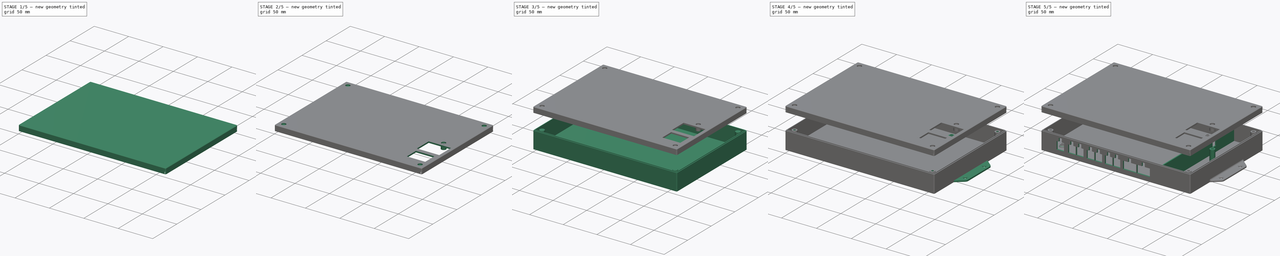
[diagram: build sequence overview — one tinted view per stage of 5, left to right]
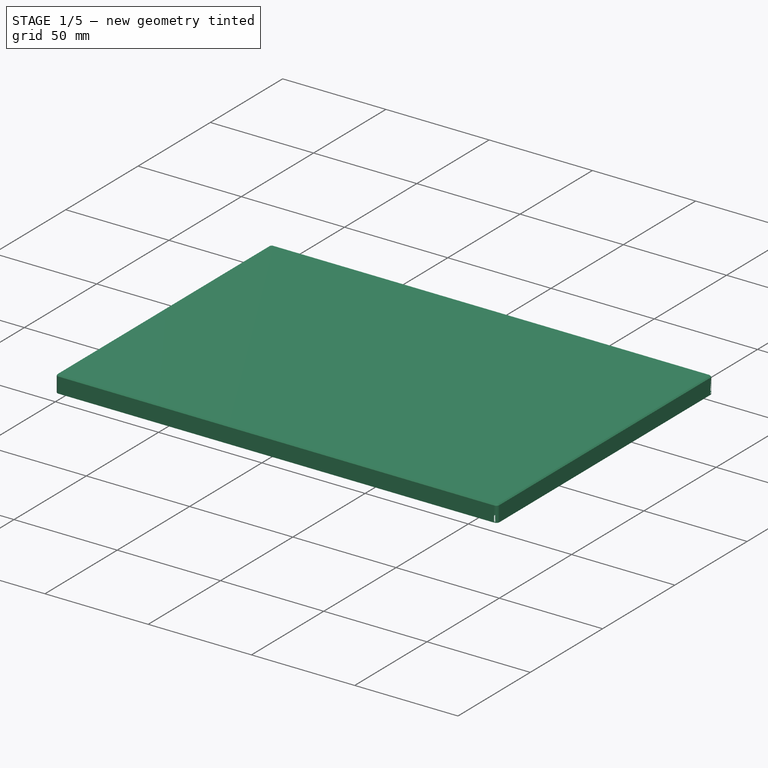
[diagram: stage 1 of 5 — iso view after this stage's code; geometry added in this stage tinted green]
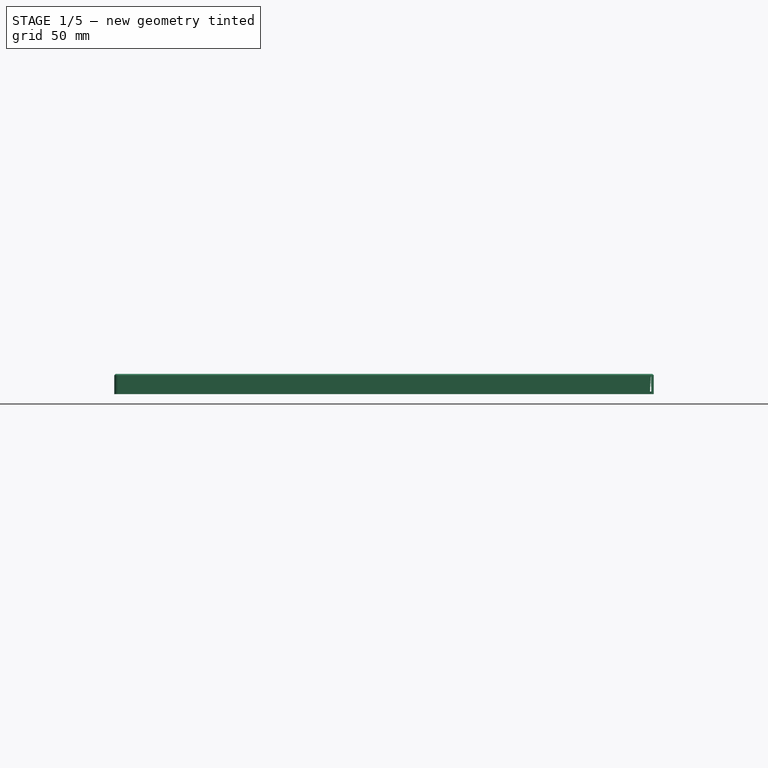
[diagram: stage 1 of 5 — front view after this stage's code; geometry added in this stage tinted green]
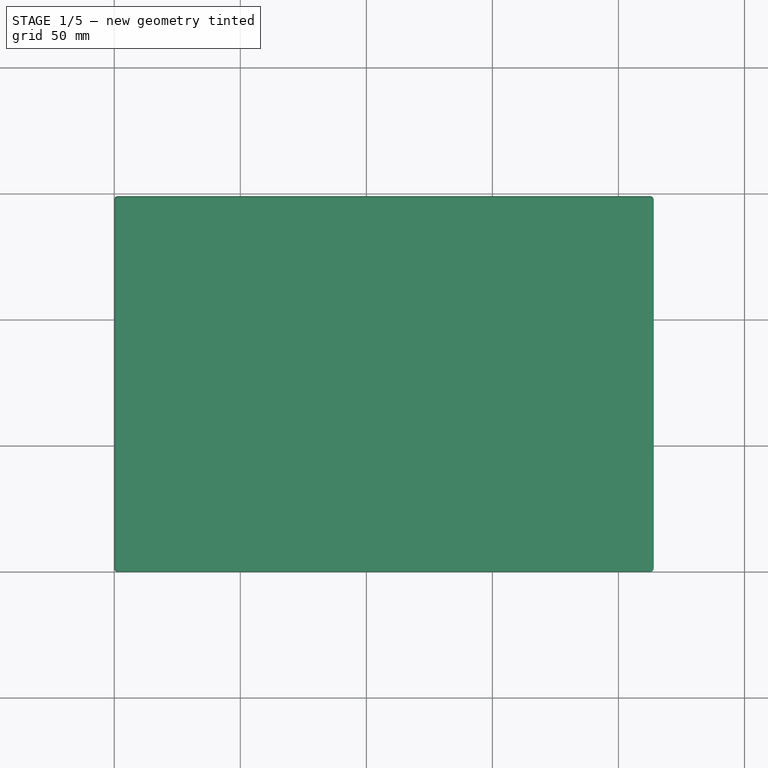
[diagram: stage 1 of 5 — top view after this stage's code; geometry added in this stage tinted green]
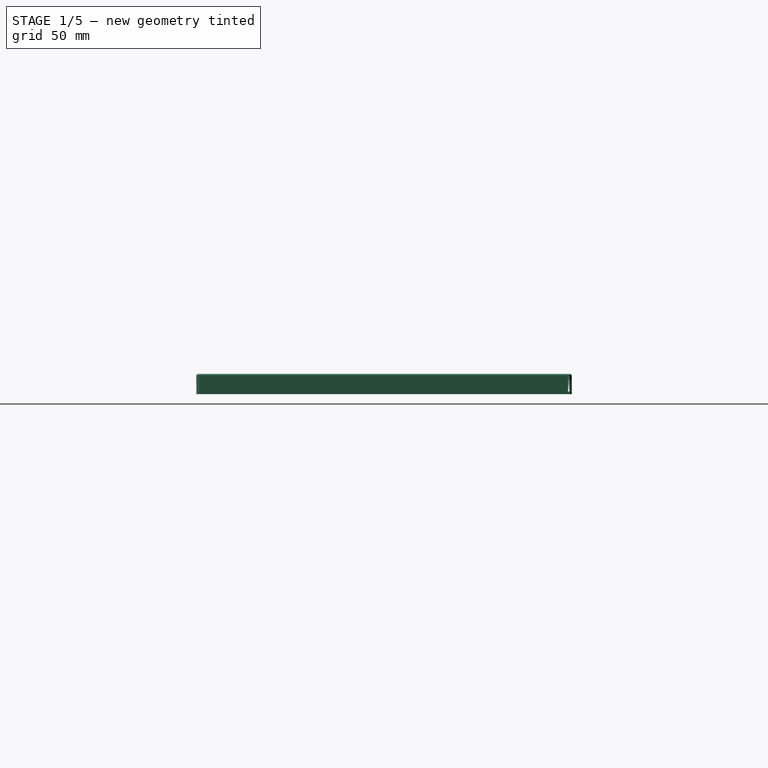
[diagram: stage 1 of 5 — right view after this stage's code; geometry added in this stage tinted green]
FCSTD DOCUMENT  (FreeCAD 0.19R24291 (Git))
Label: box
License: All rights reserved
LicenseURL: http://en.wikipedia.org/wiki/All_rights_reserved
objects: Sketcher::SketchObject×29, PartDesign::Pocket×16, PartDesign::Pad×13, PartDesign::Fillet×10, PartDesign::Chamfer×10, PartDesign::Body×2
note: 129 computed .brp shape members not serialized (recipe doc carries the construction recipe); baked Part::Feature solids carry a one-line shape summary decoded from their .brp

FEATURE [Sketcher::SketchObject] Sketch013  label="Основа крышки. Схема"
  AttachmentOffset = pos=(0,0,50) rot=(0,0,1;0rad)
  FullyConstrained = true
  MapMode = 5
  Placement = pos=(0,0,50) rot=(0,0,1;0rad)
  Support = -> [XY_Plane001]
  sketch-geometry (4):
    g0: LineSegment StartX=0 StartY=0 StartZ=0 EndX=214 EndY=0 EndZ=0
    g1: LineSegment StartX=214 StartY=0 StartZ=0 EndX=214 EndY=149 EndZ=0
    g2: LineSegment StartX=214 StartY=149 StartZ=0 EndX=0 EndY=149 EndZ=0
    g3: LineSegment StartX=0 StartY=149 StartZ=0 EndX=0 EndY=0 EndZ=0
  constraints (11):
    c: Coincident(g0,g1)
    c: Coincident(g1,g2)
    c: Coincident(g2,g3)
    c: Coincident(g3,g0)
    c: Horizontal(g0)
    c: Horizontal(g2)
    c: Vertical(g1)
    c: Vertical(g3)
    c: Coincident(g0,g-1)
    c: DistanceX(g1) = 214
    c: DistanceY(g1) = 149
FEATURE [PartDesign::Pad] Pad006  label="Основа крышки"
  Direction = (1,1,1)
  Length = 7
  Length2 = 100
  Profile = -> Sketch013
  Type = 0
FEATURE [Sketcher::SketchObject] Sketch014  label="Карман крышки. Схема"
  AttachmentOffset = pos=(0,0,50) rot=(0,0,1;0rad)
  FullyConstrained = true
  MapMode = 5
  Placement = pos=(0,0,50) rot=(0,0,1;0rad)
  Support = -> [XY_Plane001]
  sketch-geometry (4):
    g0: LineSegment StartX=2 StartY=2 StartZ=0 EndX=212 EndY=2 EndZ=0
    g1: LineSegment StartX=212 StartY=2 StartZ=0 EndX=212 EndY=147 EndZ=0
    g2: LineSegment StartX=212 StartY=147 StartZ=0 EndX=2 EndY=147 EndZ=0
    g3: LineSegment StartX=2 StartY=147 StartZ=0 EndX=2 EndY=2 EndZ=0
  constraints (12):
    c: Coincident(g0,g1)
    c: Coincident(g1,g2)
    c: Coincident(g2,g3)
    c: Coincident(g3,g0)
    c: Horizontal(g0)
    c: Horizontal(g2)
    c: Vertical(g1)
    c: Vertical(g3)
    c: DistanceY(g0) = 2
    c: DistanceX(g0) = 2
    c: DistanceX(g1) = 212
    c: DistanceY(g1) = 147
FEATURE [PartDesign::Pocket] Pocket007  label="Карман крышки"
  BaseFeature = -> Pad006
  Length = 5
  Length2 = 100
  Profile = -> Sketch014
  Reversed = true
  Type = 0
FEATURE [PartDesign::Fillet] Fillet005  label="Скругление внешних граней крышки"
  Base = -> Pocket007 [Edge1,Edge2,Edge8,Edge5]
  BaseFeature = -> Pocket007
  Radius = 1.5
  SupportTransform = false
FEATURE [PartDesign::Fillet] Fillet006  label="Скругление внутренних граней крышки"
  Base = -> Fillet005 [Edge34,Edge32,Edge30,Edge29]
  BaseFeature = -> Fillet005
  Radius = 0.5
  SupportTransform = false
FEATURE [Sketcher::SketchObject] Sketch015  label="Бортик крышки. Схема"
  FullyConstrained = true
  MapMode = 5
  Placement = pos=(0,0,50) rot=(1,0,0;3.14159rad)
  Support = -> [Fillet006]
  sketch-geometry (8):
    g0: LineSegment StartX=0 StartY=0 StartZ=0 EndX=214 EndY=0 EndZ=0
    g1: LineSegment StartX=214 StartY=0 StartZ=0 EndX=214 EndY=-149 EndZ=0
    g2: LineSegment StartX=214 StartY=-149 StartZ=0 EndX=0 EndY=-149 EndZ=0
    g3: LineSegment StartX=0 StartY=-149 StartZ=0 EndX=0 EndY=0 EndZ=0
    g4: LineSegment StartX=0.9 StartY=-0.9 StartZ=0 EndX=213.1 EndY=-0.9 EndZ=0
    g5: LineSegment StartX=213.1 StartY=-0.9 StartZ=0 EndX=213.1 EndY=-148.1 EndZ=0
    g6: LineSegment StartX=213.1 StartY=-148.1 StartZ=0 EndX=0.9 EndY=-148.1 EndZ=0
    g7: LineSegment StartX=0.9 StartY=-148.1 StartZ=0 EndX=0.9 EndY=-0.9 EndZ=0
  constraints (23):
    c: Coincident(g0,g1)
    c: Coincident(g1,g2)
    c: Coincident(g2,g3)
    c: Coincident(g3,g0)
    c: Horizontal(g0)
    c: Horizontal(g2)
    c: Vertical(g1)
    c: Vertical(g3)
    c: Coincident(g0,g-1)
    c: DistanceX(g1) = 214
    c: DistanceY(g1) = -149
    c: Coincident(g4,g5)
    c: Coincident(g5,g6)
    c: Coincident(g6,g7)
    c: Coincident(g7,g4)
    c: Horizontal(g4)
    c: Horizontal(g6)
    c: Vertical(g5)
    c: Vertical(g7)
    c: DistanceY(g4) = -0.9
    c: DistanceX(g4) = 0.9
    c: DistanceX(g5) = 213.1
    c: DistanceY(g5) = -148.1
FEATURE [PartDesign::Pad] Pad007  label="Бортик крышки"
  BaseFeature = -> Fillet006
  Direction = (1,1,1)
  Length = 1
  Length2 = 100
  Profile = -> Sketch015
  Type = 0
FEATURE [PartDesign::Fillet] Fillet007  label="Скругление внешних граней бортика крышки"
  Base = -> Pad007 [Edge41,Edge50,Edge46,Edge42]
  BaseFeature = -> Pad007
  Radius = 1.5
  SupportTransform = false
FEATURE [PartDesign::Fillet] Fillet008  label="Скругление внутренних граней бортика крышки"
  Base = -> Fillet007 [Edge32,Edge34,Edge30,Edge29]
  BaseFeature = -> Fillet007
  Radius = 1
  SupportTransform = false
FEATURE [Sketcher::SketchObject] Sketch016  label="Стойка крышки. Схема"
  FullyConstrained = true
  MapMode = 5
  Placement = pos=(0,0,55) rot=(1,0,0;3.14159rad)
  Support = -> [Fillet008]
  sketch-geometry (4):
    g0: Circle CenterX=8 CenterY=-8 CenterZ=0 NormalX=0 NormalY=0 NormalZ=1 AngleXU=0 Radius=3.5
    g1: Circle CenterX=8 CenterY=-141 CenterZ=0 NormalX=0 NormalY=0 NormalZ=1 AngleXU=0 Radius=3.5
    g2: Circle CenterX=206 CenterY=-8 CenterZ=0 NormalX=0 NormalY=0 NormalZ=1 AngleXU=0 Radius=3.5
    g3: Circle CenterX=206 CenterY=-141 CenterZ=0 NormalX=0 NormalY=0 NormalZ=1 AngleXU=0 Radius=3.5
  constraints (12):
    c: Radius(g0) = 3.5
    c: Equal(g0,g1)
    c: Equal(g0,g3)
    c: Equal(g0,g2)
    c: DistanceX(g0) = 8
    c: DistanceY(g0) = -8
    c: DistanceX(g1) = 8
    c: DistanceY(g1) = -141
    c: DistanceY(g2) = -8
    c: DistanceX(g2) = 206
    c: DistanceX(g3) = 206
    c: DistanceY(g3) = -141
FEATURE [PartDesign::Pad] Pad008  label="Стойка крышки"
  BaseFeature = -> Fillet008
  Direction = (1,1,1)
  Length = 5.9
  Length2 = 100
  Profile = -> Sketch016
  Type = 0
FEATURE [PartDesign::Chamfer] Chamfer003  label="Красота для стойки крышки"
  Angle = 45
  Base = -> Pad008 [Edge96,Edge94,Edge93,Edge95]
  BaseFeature = -> Pad008
  ChamferType = 0
  FlipDirection = false
  Size = 1.5
  Size2 = 1
  SupportTransform = false
FEATURE [PartDesign::Chamfer] Chamfer004  label="Скругление граней крышки"
  Angle = 45
  Base = -> Chamfer003 [Edge108,Edge103,Edge95,Edge100]
  BaseFeature = -> Chamfer003
  ChamferType = 0
  FlipDirection = false
  Size = 0.5
  Size2 = 1
  SupportTransform = false
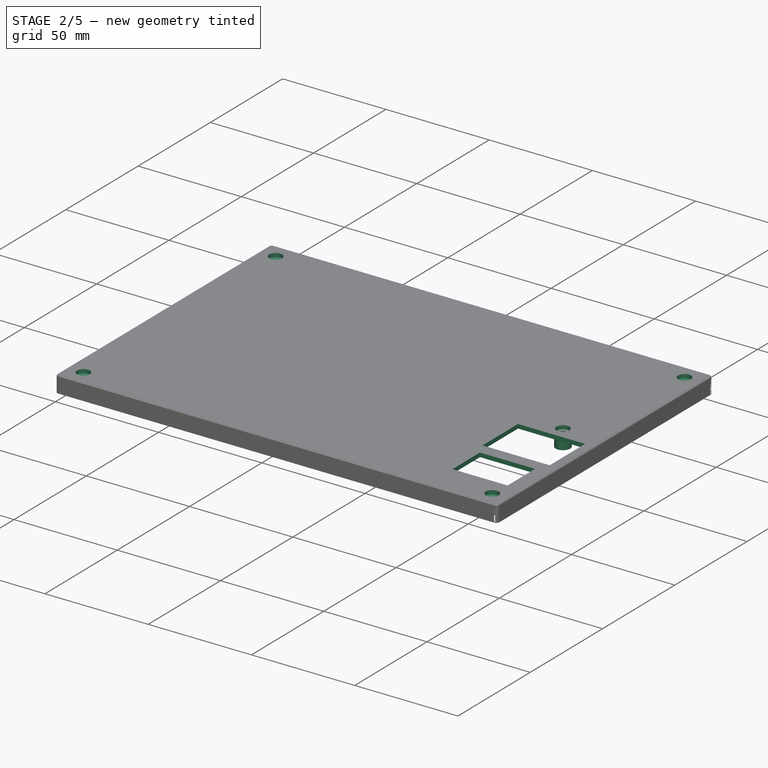
[diagram: stage 2 of 5 — iso view after this stage's code; geometry added in this stage tinted green]
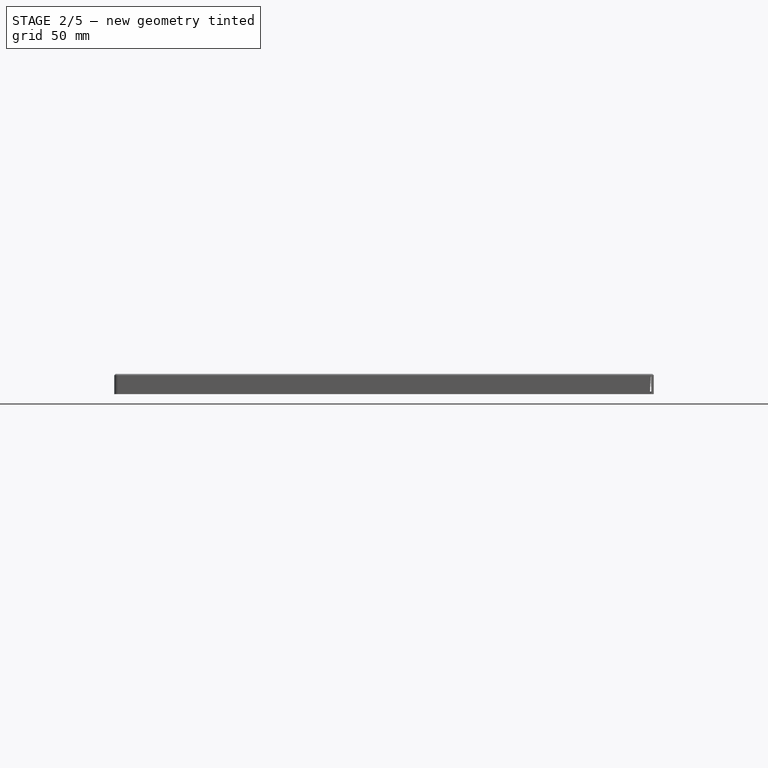
[diagram: stage 2 of 5 — front view after this stage's code; geometry added in this stage tinted green]
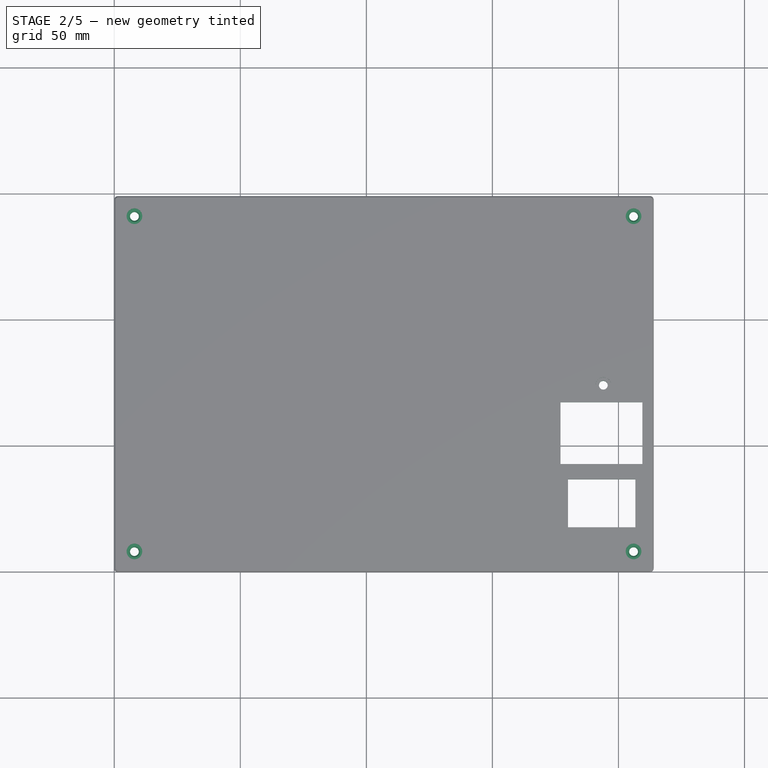
[diagram: stage 2 of 5 — top view after this stage's code; geometry added in this stage tinted green]
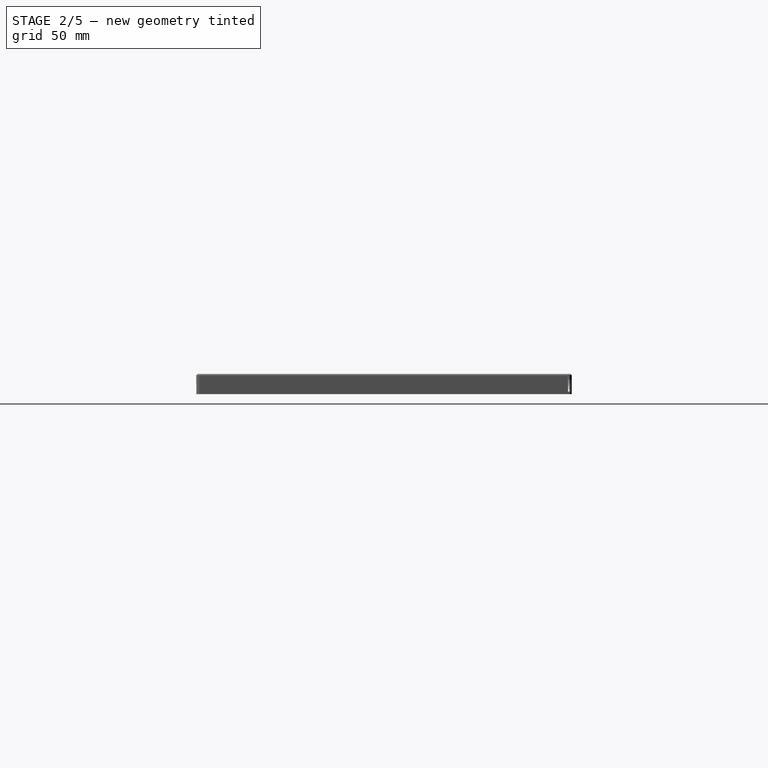
[diagram: stage 2 of 5 — right view after this stage's code; geometry added in this stage tinted green]
FEATURE [Sketcher::SketchObject] Sketch017  label="Углубление под винт в крышке. Схема"
  FullyConstrained = true
  MapMode = 5
  Placement = pos=(0,0,57) rot=(0,0,1;0rad)
  Support = -> [Chamfer004]
  sketch-geometry (4):
    g0: Circle CenterX=8 CenterY=8 CenterZ=0 NormalX=0 NormalY=0 NormalZ=1 AngleXU=0 Radius=3.1
    g1: Circle CenterX=8 CenterY=141 CenterZ=0 NormalX=0 NormalY=0 NormalZ=1 AngleXU=0 Radius=3.1
    g2: Circle CenterX=206 CenterY=141 CenterZ=0 NormalX=0 NormalY=0 NormalZ=1 AngleXU=0 Radius=3.1
    g3: Circle CenterX=206 CenterY=8 CenterZ=0 NormalX=0 NormalY=0 NormalZ=1 AngleXU=0 Radius=3.1
  constraints (12):
    c: Radius(g3) = 3.1
    c: Equal(g3,g2)
    c: Equal(g3,g1)
    c: Equal(g3,g0)
    c: DistanceX(g2) = 206
    c: DistanceY(g2) = 141
    c: DistanceY(g1) = 141
    c: DistanceX(g1) = 8
    c: DistanceX(g0) = 8
    c: DistanceY(g0) = 8
    c: DistanceY(g3) = 8
    c: DistanceX(g3) = 206
FEATURE [PartDesign::Pocket] Pocket008  label="Углубление под винт в крышке"
  BaseFeature = -> Chamfer004
  Length = 1.85
  Length2 = 100
  Profile = -> Sketch017
  Type = 0
FEATURE [Sketcher::SketchObject] Sketch018  label="Отверстие под винт в крышке. Схема"
  FullyConstrained = true
  MapMode = 5
  Placement = pos=(0,0,57) rot=(0,0,1;0rad)
  Support = -> [Pocket008]
  sketch-geometry (4):
    g0: Circle CenterX=8 CenterY=8 CenterZ=0 NormalX=0 NormalY=0 NormalZ=1 AngleXU=0 Radius=1.75
    g1: Circle CenterX=8 CenterY=141 CenterZ=0 NormalX=0 NormalY=0 NormalZ=1 AngleXU=0 Radius=1.75
    g2: Circle CenterX=206 CenterY=141 CenterZ=0 NormalX=0 NormalY=0 NormalZ=1 AngleXU=0 Radius=1.75
    g3: Circle CenterX=206 CenterY=8 CenterZ=0 NormalX=0 NormalY=0 NormalZ=1 AngleXU=0 Radius=1.75
  constraints (12):
    c: Radius(g0) = 1.75
    c: Equal(g0,g1)
    c: Equal(g0,g2)
    c: Equal(g0,g3)
    c: DistanceX(g1) = 8
    c: DistanceY(g1) = 141
    c: DistanceY(g0) = 8
    c: DistanceX(g0) = 8
    c: DistanceY(g3) = 8
    c: DistanceX(g3) = 206
    c: DistanceY(g2) = 141
    c: DistanceX(g2) = 206
FEATURE [PartDesign::Pocket] Pocket009  label="Отверстие под винт в крышке"
  BaseFeature = -> Pocket008
  Length = 7.9
  Length2 = 100
  Profile = -> Sketch018
  Type = 0
FEATURE [PartDesign::Chamfer] Chamfer006  label="Фаска отверстия под винт в крышке"
  Angle = 45
  Base = -> Pocket009 [Edge97,Edge99,Edge100,Edge98]
  BaseFeature = -> Pocket009
  ChamferType = 0
  FlipDirection = false
  Size = 0.5
  Size2 = 1
  SupportTransform = false
FEATURE [Sketcher::SketchObject] Sketch021  label="Вырез под разъем питания 220. Схема"
  FullyConstrained = true
  MapMode = 5
  Placement = pos=(0,0,57) rot=(0,0,1;0rad)
  Support = -> [Chamfer006]
  sketch-geometry (8):
    g0: LineSegment StartX=180 StartY=36.6 StartZ=0 EndX=206.7 EndY=36.6 EndZ=0
    g1: LineSegment StartX=206.7 StartY=36.6 StartZ=0 EndX=206.7 EndY=17.6 EndZ=0
    g2: LineSegment StartX=206.7 StartY=17.6 StartZ=0 EndX=180 EndY=17.6 EndZ=0
    g3: LineSegment StartX=180 StartY=17.6 StartZ=0 EndX=180 EndY=36.6 EndZ=0
    g4: LineSegment StartX=177 StartY=67.2 StartZ=0 EndX=209.5 EndY=67.2 EndZ=0
    g5: LineSegment StartX=209.5 StartY=67.2 StartZ=0 EndX=209.5 EndY=42.7 EndZ=0
    g6: LineSegment StartX=209.5 StartY=42.7 StartZ=0 EndX=177 EndY=42.7 EndZ=0
    g7: LineSegment StartX=177 StartY=42.7 StartZ=0 EndX=177 EndY=67.2 EndZ=0
  constraints (24):
    c: Coincident(g0,g1)
    c: Coincident(g1,g2)
    c: Coincident(g2,g3)
    c: Coincident(g3,g0)
    c: Horizontal(g0)
    c: Horizontal(g2)
    c: Vertical(g1)
    c: Vertical(g3)
    c: Distance(g0,g0) = 26.7
    c: Distance(g3) = 19
    c: DistanceY(g2) = 17.6
    c: DistanceX(g2) = 180
    c: Coincident(g4,g5)
    c: Coincident(g5,g6)
    c: Coincident(g6,g7)
    c: Coincident(g7,g4)
    c: Horizontal(g4)
    c: Horizontal(g6)
    c: Vertical(g5)
    c: Vertical(g7)
    c: Distance(g4,g4) = 32.5
    c: Distance(g4,g6) = 24.5
    c: DistanceY(g6) = 42.7
    c: DistanceX(g6) = 177
FEATURE [PartDesign::Pocket] Pocket011  label="Вырез под разъем питания 220"
  BaseFeature = -> Chamfer006
  Length = 4
  Length2 = 100
  Midplane = true
  Profile = -> Sketch021
  Type = 0
FEATURE [PartDesign::Body] Body  label="Корпус"
  Group = -> [Sketch,Pad,Sketch001,Pocket,Fillet,Fillet001,Sketch002,Pad001,Fillet002,Fillet003,Sketch003,Pad002,Sketch004,Pocket001,Chamfer,Sketch005,Pad003,Fillet004,Sketch006,Pocket002,Chamfer001,Sketch007,Pad004,Sketch008,Pad005,Sketch009,Pocket003,Sketch010,Pocket004,Chamfer002,Sketch011,Pocket005,Sketch012,Pocket006,Fillet009,Chamfer005,Sketch019,Pad009,Sketch020,Pocket010,Sketch022,Pad010,Sketch023,+2 more]
  Origin = -> Origin
  Placement = pos=(0,0,24) rot=(0,0,1;0rad)
  Tip = -> Chamfer007
FEATURE [Sketcher::SketchObject] Sketch026  label="Отверстие под винт в 5ой стойке. Схема"
  FullyConstrained = true
  MapMode = 5
  Placement = pos=(0,0,49.1) rot=(1,0,0;3.14159rad)
  sketch-geometry (1):
    g0: Circle CenterX=194 CenterY=-74 CenterZ=0 NormalX=0 NormalY=0 NormalZ=1 AngleXU=0 Radius=1.75
  constraints (3):
    c: DistanceX(g0) = 194
    c: DistanceY(g0) = -74
    c: Radius(g0) = 1.75
FEATURE [Sketcher::SketchObject] Sketch027  label="Стойки для платы реле. Схема"
  FullyConstrained = true
  MapMode = 5
  Placement = pos=(0,0,55) rot=(1,0,0;3.14159rad)
  sketch-geometry (4):
    g0: Circle CenterX=204.4 CenterY=-87.6 CenterZ=0 NormalX=0 NormalY=0 NormalZ=1 AngleXU=0 Radius=3
    g1: Circle CenterX=204.4 CenterY=-127.8 CenterZ=0 NormalX=0 NormalY=0 NormalZ=1 AngleXU=0 Radius=3
    g2: Circle CenterX=183.6 CenterY=-82.4 CenterZ=0 NormalX=0 NormalY=0 NormalZ=1 AngleXU=0 Radius=3
    g3: Circle CenterX=183.6 CenterY=-133.2 CenterZ=0 NormalX=0 NormalY=0 NormalZ=1 AngleXU=0 Radius=3
  constraints (12):
    c: Radius(g2) = 3
    c: Equal(g2,g0)
    c: Equal(g2,g1)
    c: Equal(g2,g3)
    c: DistanceY(g3) = -133.2
    c: DistanceY(g3,g1) = 5.4
    c: DistanceY(g0,g2) = 5.2
    c: DistanceY(g3,g2) = 50.8
    c: DistanceX(g3,g1) = 20.8
    c: DistanceX(g3) = 183.6
    c: DistanceX(g2) = 183.6
    c: DistanceX(g2,g0) = 20.8
FEATURE [Sketcher::SketchObject] Sketch028  label="Отверстия под винт в стойках платы реле. Схема"
  FullyConstrained = true
  MapMode = 5
  Placement = pos=(0,0,51) rot=(1,0,0;3.14159rad)
  sketch-geometry (4):
    g0: Circle CenterX=183.6 CenterY=-133.2 CenterZ=0 NormalX=0 NormalY=0 NormalZ=1 AngleXU=0 Radius=0.8
    g1: Circle CenterX=204.4 CenterY=-127.8 CenterZ=0 NormalX=0 NormalY=0 NormalZ=1 AngleXU=0 Radius=0.8
    g2: Circle CenterX=183.6 CenterY=-82.4 CenterZ=0 NormalX=0 NormalY=0 NormalZ=1 AngleXU=0 Radius=0.8
    g3: Circle CenterX=204.4 CenterY=-87.6 CenterZ=0 NormalX=0 NormalY=0 NormalZ=1 AngleXU=0 Radius=0.8
  constraints (12):
    c: Radius(g2) = 0.8
    c: Equal(g2,g3)
    c: Equal(g2,g0)
    c: Equal(g2,g1)
    c: DistanceX(g2) = 183.6
    c: DistanceX(g0) = 183.6
    c: DistanceY(g0,g2) = 50.8
    c: DistanceY(g0) = -133.2
    c: DistanceX(g0,g1) = 20.8
    c: DistanceX(g2,g3) = 20.8
    c: DistanceY(g3,g2) = 5.2
    c: DistanceY(g0,g1) = 5.4
FEATURE [PartDesign::Pad] Pad012  label="Стойки для платы реле"
  BaseFeature = -> Pocket011
  Direction = (0,0,1)
  Length = 4
  Length2 = 100
  Profile = -> Sketch027
  Reversed = true
  Type = 0
  UseCustomVector = true
FEATURE [PartDesign::Pocket] Pocket015  label="Отверстия под винт в стойках платы реле"
  BaseFeature = -> Pad012
  Length = 5
  Length2 = 100
  Profile = -> Sketch028
  Type = 0
FEATURE [Sketcher::SketchObject] Sketch029  label="Пятая стойка. Схема"
  AttachmentOffset = pos=(0,0,-2) rot=(0,0,1;0rad)
  FullyConstrained = true
  MapMode = 5
  Placement = pos=(0,0,55) rot=(0,0,1;0rad)
  Support = -> [Pocket015]
  sketch-geometry (1):
    g0: Circle CenterX=194 CenterY=74 CenterZ=0 NormalX=0 NormalY=0 NormalZ=1 AngleXU=0 Radius=3.5
  constraints (3):
    c: DistanceX(g0) = 194
    c: DistanceY(g0) = 74
    c: Radius(g0) = 3.5
FEATURE [PartDesign::Pad] Pad013  label="Пятая стойка"
  BaseFeature = -> Pocket015
  Direction = (1,1,1)
  Length = 5.9
  Length2 = 100
  Profile = -> Sketch029
  Reversed = true
  Type = 0
FEATURE [PartDesign::Chamfer] Chamfer008  label="Фаски стоек"
  Angle = 45
  Base = -> Pad013 [Edge99,Edge98,Edge101,Edge100,Edge96]
  BaseFeature = -> Pad013
  ChamferType = 0
  FlipDirection = false
  Size = 1
  Size2 = 1
  SupportTransform = false
FEATURE [PartDesign::Pocket] Pocket016  label="Отверстие под винт в 5ой стойке"
  BaseFeature = -> Chamfer008
  Length = 7.9
  Length2 = 100
  Profile = -> Sketch026
  Type = 0
FEATURE [Sketcher::SketchObject] Sketch030  label="Углубление под винт в пятой стойке. Схема"
  FullyConstrained = true
  MapMode = 5
  Placement = pos=(0,0,57) rot=(0,0,1;0rad)
  Support = -> [Pocket016]
  sketch-geometry (1):
    g0: Circle CenterX=194 CenterY=74 CenterZ=0 NormalX=0 NormalY=0 NormalZ=1 AngleXU=0 Radius=3.1
  constraints (3):
    c: Radius(g0) = 3.1
    c: DistanceX(g0) = 194
    c: DistanceY(g0) = 74
FEATURE [PartDesign::Pocket] Pocket017  label="Углубление под винт в пятой стойке"
  BaseFeature = -> Pocket016
  Length = 1.85
  Length2 = 100
  Profile = -> Sketch030
  Type = 0
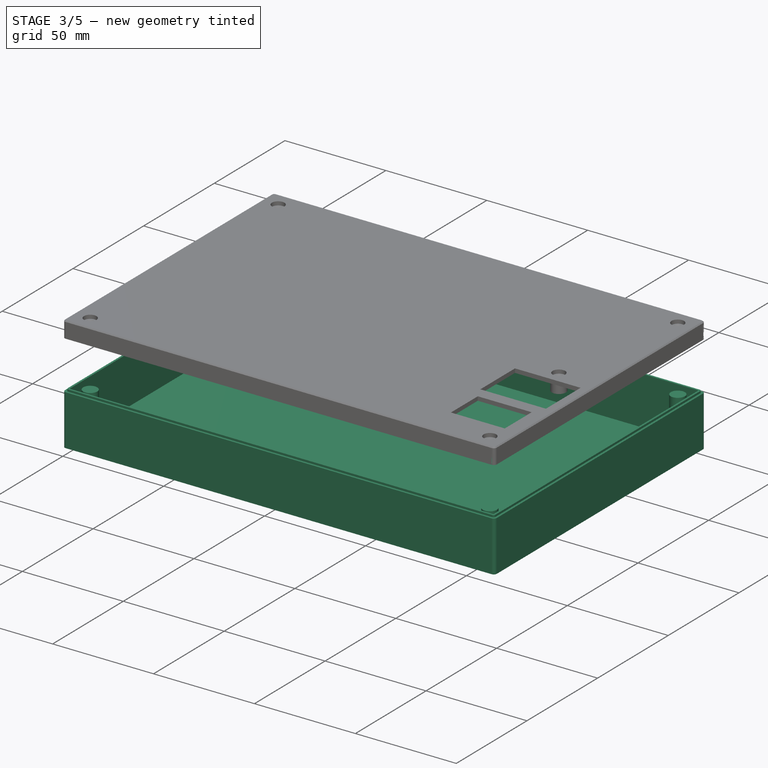
[diagram: stage 3 of 5 — iso view after this stage's code; geometry added in this stage tinted green]
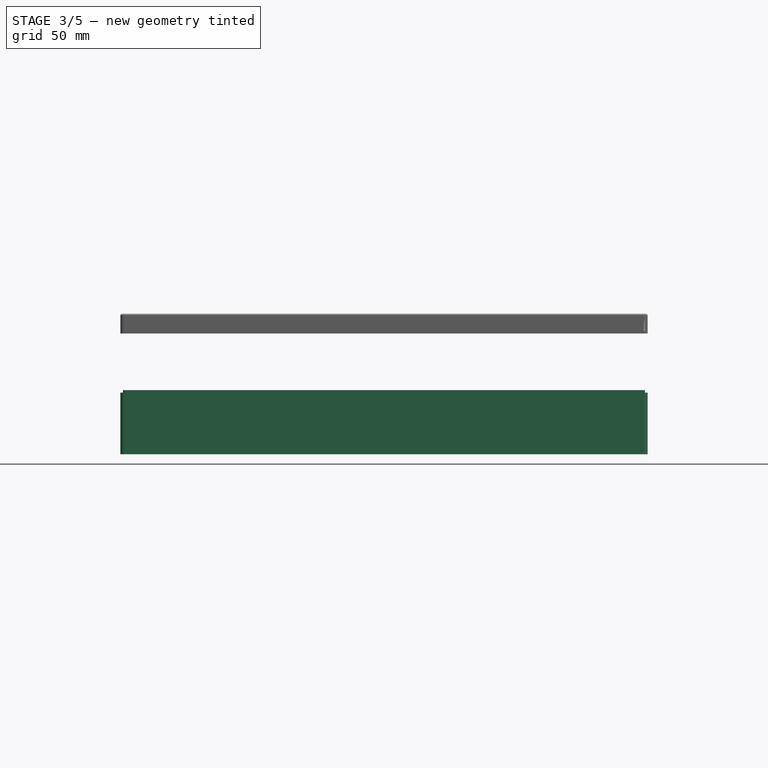
[diagram: stage 3 of 5 — front view after this stage's code; geometry added in this stage tinted green]
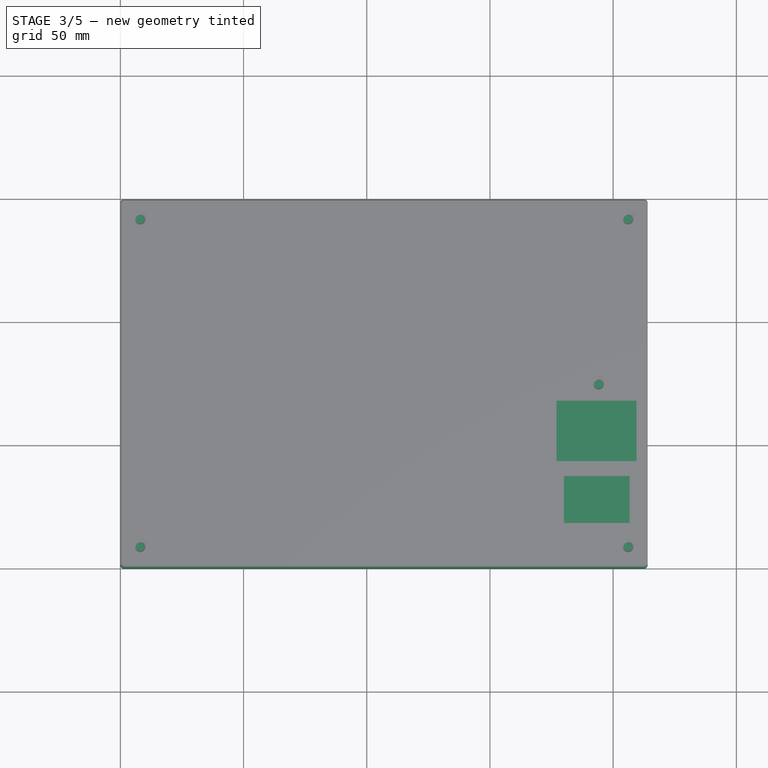
[diagram: stage 3 of 5 — top view after this stage's code; geometry added in this stage tinted green]
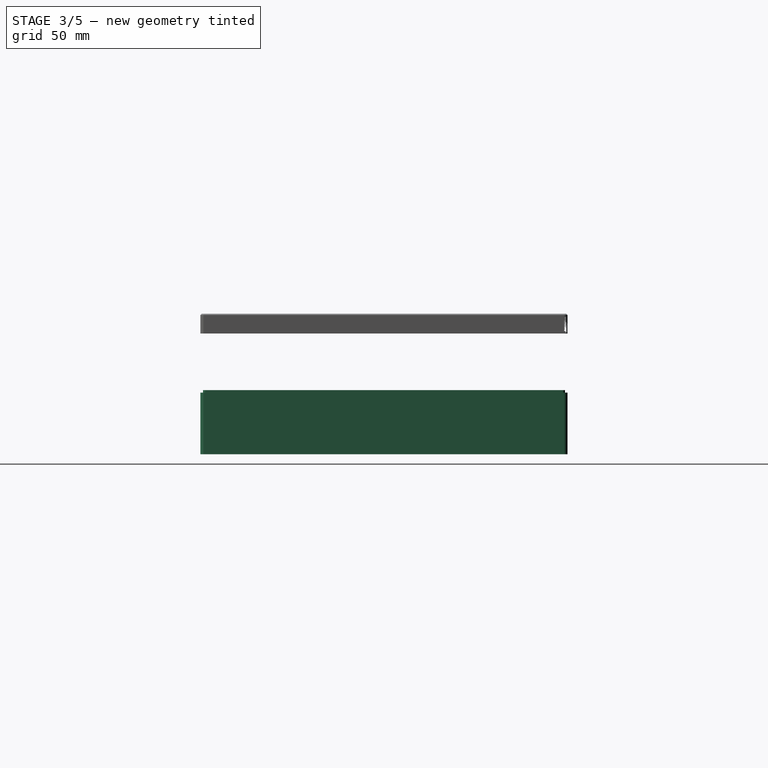
[diagram: stage 3 of 5 — right view after this stage's code; geometry added in this stage tinted green]
FEATURE [Sketcher::SketchObject] Sketch  label="Основа корпуса. Схема"
  FullyConstrained = true
  MapMode = 5
  Support = -> [XY_Plane]
  sketch-geometry (4):
    g0: LineSegment StartX=0 StartY=0 StartZ=0 EndX=214 EndY=0 EndZ=0
    g1: LineSegment StartX=214 StartY=0 StartZ=0 EndX=214 EndY=149 EndZ=0
    g2: LineSegment StartX=214 StartY=149 StartZ=0 EndX=0 EndY=149 EndZ=0
    g3: LineSegment StartX=0 StartY=149 StartZ=0 EndX=0 EndY=0 EndZ=0
  constraints (11):
    c: Coincident(g0,g1)
    c: Coincident(g1,g2)
    c: Coincident(g2,g3)
    c: Coincident(g3,g0)
    c: Horizontal(g0)
    c: Horizontal(g2)
    c: Vertical(g1)
    c: Vertical(g3)
    c: Coincident(g0,g-1)
    c: DistanceX(g1) = 214
    c: DistanceY(g1) = 149
FEATURE [PartDesign::Pad] Pad  label="Основа корпуса"
  Direction = (1,1,1)
  Length = 25
  Length2 = 100
  Profile = -> Sketch
  Type = 0
FEATURE [Sketcher::SketchObject] Sketch001  label="Выдавливание основы корпуса. Схема"
  FullyConstrained = true
  MapMode = 5
  Placement = pos=(0,0,25) rot=(0,0,1;0rad)
  Support = -> [Pad]
  sketch-geometry (4):
    g0: LineSegment StartX=2 StartY=2 StartZ=0 EndX=212 EndY=2 EndZ=0
    g1: LineSegment StartX=212 StartY=2 StartZ=0 EndX=212 EndY=147 EndZ=0
    g2: LineSegment StartX=212 StartY=147 StartZ=0 EndX=2 EndY=147 EndZ=0
    g3: LineSegment StartX=2 StartY=147 StartZ=0 EndX=2 EndY=2 EndZ=0
  constraints (12):
    c: Coincident(g0,g1)
    c: Coincident(g1,g2)
    c: Coincident(g2,g3)
    c: Coincident(g3,g0)
    c: Horizontal(g0)
    c: Horizontal(g2)
    c: Vertical(g1)
    c: Vertical(g3)
    c: DistanceX(g0) = 2
    c: DistanceY(g0) = 2
    c: DistanceX(g1) = 212
    c: DistanceY(g1) = 147
FEATURE [PartDesign::Pocket] Pocket  label="Выдавливание основы корпуса"
  BaseFeature = -> Pad
  Length = 23
  Length2 = 100
  Profile = -> Sketch001
  Type = 0
FEATURE [PartDesign::Fillet] Fillet  label="Скругление внешних граней корпуса"
  Base = -> Pocket [Edge1,Edge2,Edge8,Edge5]
  BaseFeature = -> Pocket
  Radius = 1.5
  SupportTransform = false
FEATURE [PartDesign::Fillet] Fillet001  label="Скругление внутренних граней корпуса"
  Base = -> Fillet [Edge32,Edge34,Edge29,Edge30]
  BaseFeature = -> Fillet
  Radius = 0.5
  SupportTransform = false
FEATURE [Sketcher::SketchObject] Sketch002  label="Бортик корпуса. Схема"
  FullyConstrained = true
  MapMode = 5
  Placement = pos=(0,0,25) rot=(0,0,1;0rad)
  Support = -> [Fillet001]
  sketch-geometry (8):
    g0: LineSegment StartX=1.05 StartY=1.05 StartZ=0 EndX=212.95 EndY=1.05 EndZ=0
    g1: LineSegment StartX=212.95 StartY=1.05 StartZ=0 EndX=212.95 EndY=147.95 EndZ=0
    g2: LineSegment StartX=212.95 StartY=147.95 StartZ=0 EndX=1.05 EndY=147.95 EndZ=0
    g3: LineSegment StartX=1.05 StartY=147.95 StartZ=0 EndX=1.05 EndY=1.05 EndZ=0
    g4: LineSegment StartX=2 StartY=2 StartZ=0 EndX=212 EndY=2 EndZ=0
    g5: LineSegment StartX=212 StartY=2 StartZ=0 EndX=212 EndY=147 EndZ=0
    g6: LineSegment StartX=212 StartY=147 StartZ=0 EndX=2 EndY=147 EndZ=0
    g7: LineSegment StartX=2 StartY=147 StartZ=0 EndX=2 EndY=2 EndZ=0
  constraints (24):
    c: Coincident(g0,g1)
    c: Coincident(g1,g2)
    c: Coincident(g2,g3)
    c: Coincident(g3,g0)
    c: Horizontal(g0)
    c: Horizontal(g2)
    c: Vertical(g1)
    c: Vertical(g3)
    c: DistanceX(g0) = 1.05
    c: DistanceY(g0) = 1.05
    c: DistanceX(g1) = 212.95
    c: DistanceY(g1) = 147.95
    c: Coincident(g4,g5)
    c: Coincident(g5,g6)
    c: Coincident(g6,g7)
    c: Coincident(g7,g4)
    c: Horizontal(g4)
    c: Horizontal(g6)
    c: Vertical(g5)
    c: Vertical(g7)
    c: DistanceX(g4) = 2
    c: DistanceY(g4) = 2
    c: DistanceY(g5) = 147
    c: DistanceX(g5) = 212
FEATURE [PartDesign::Pad] Pad001  label="Бортик корпуса"
  BaseFeature = -> Fillet001
  Direction = (1,1,1)
  Length = 1
  Length2 = 100
  Profile = -> Sketch002
  Type = 0
FEATURE [PartDesign::Fillet] Fillet002  label="Скругление внешних граней бортика "
  Base = -> Pad001 [Edge29,Edge30,Edge32,Edge34]
  BaseFeature = -> Pad001
  Radius = 1
  SupportTransform = false
FEATURE [PartDesign::Fillet] Fillet003  label="Скругление внутренних граней бортика"
  Base = -> Fillet002 [Edge53,Edge58,Edge62,Edge54]
  BaseFeature = -> Fillet002
  Radius = 0.5
  SupportTransform = false
FEATURE [Sketcher::SketchObject] Sketch003  label="Стойка крепления крышки корпуса. Схема"
  FullyConstrained = true
  MapMode = 5
  Placement = pos=(0,0,2) rot=(0,0,1;0rad)
  Support = -> [Fillet003]
  sketch-geometry (4):
    g0: Circle CenterX=8 CenterY=141 CenterZ=0 NormalX=0 NormalY=0 NormalZ=1 AngleXU=0 Radius=3.5
    g1: Circle CenterX=8 CenterY=8 CenterZ=0 NormalX=0 NormalY=0 NormalZ=1 AngleXU=0 Radius=3.5
    g2: Circle CenterX=206 CenterY=141 CenterZ=0 NormalX=0 NormalY=0 NormalZ=1 AngleXU=0 Radius=3.5
    g3: Circle CenterX=206 CenterY=8 CenterZ=0 NormalX=0 NormalY=0 NormalZ=1 AngleXU=0 Radius=3.5
  constraints (12):
    c: Radius(g0) = 3.5
    c: Equal(g0,g1)
    c: Equal(g0,g2)
    c: Equal(g0,g3)
    c: DistanceX(g1) = 8
    c: DistanceY(g1) = 8
    c: DistanceY(g3) = 8
    c: DistanceX(g3) = 206
    c: DistanceX(g0) = 8
    c: DistanceY(g0) = 141
    c: DistanceX(g2) = 206
    c: DistanceY(g2) = 141
FEATURE [PartDesign::Pad] Pad002  label="Стойка крепления крышки корпуса"
  BaseFeature = -> Fillet003
  Direction = (1,1,1)
  Length = 23
  Length2 = 100
  Profile = -> Sketch003
  Type = 0
FEATURE [PartDesign::Chamfer] Chamfer009  label="Фаска отверстия под винт пятой стойки в крышке "
  Angle = 45
  Base = -> Pocket017 [Edge198]
  BaseFeature = -> Pocket017
  ChamferType = 0
  FlipDirection = false
  Size = 0.5
  Size2 = 1
  SupportTransform = false
FEATURE [PartDesign::Body] Body001  label="Крышка"
  Group = -> [Sketch013,Pad006,Sketch014,Pocket007,Fillet005,Fillet006,Sketch015,Pad007,Fillet007,Fillet008,Sketch016,Pad008,Chamfer003,Chamfer004,Sketch017,Pocket008,Sketch018,Pocket009,Chamfer006,Sketch021,Pocket011,Sketch026,Sketch027,Sketch028,Pad012,Pocket015,Sketch029,Pad013,Chamfer008,Pocket016,Sketch030,Pocket017,Chamfer009]
  Origin = -> Origin001
  Tip = -> Chamfer009
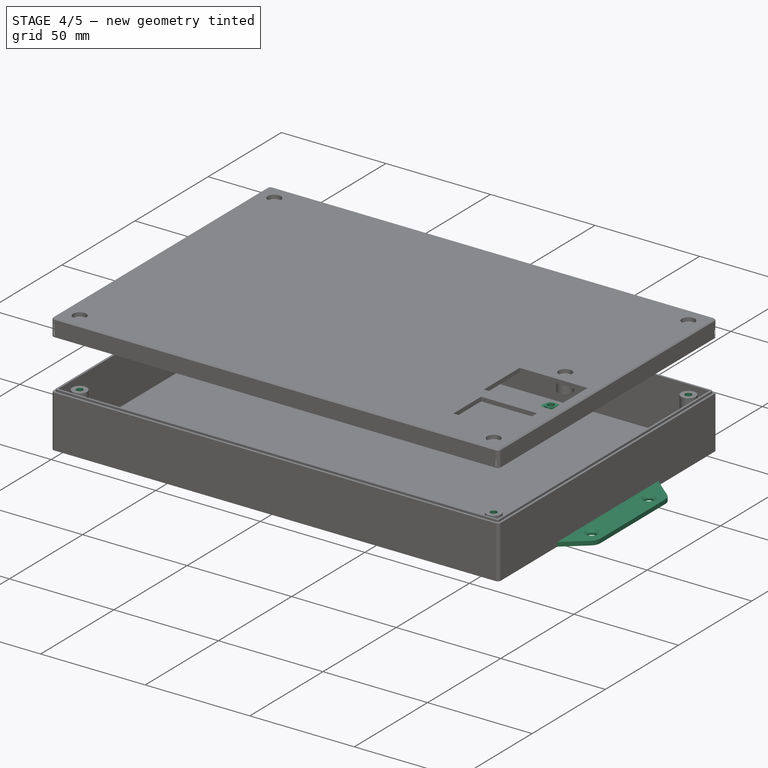
[diagram: stage 4 of 5 — iso view after this stage's code; geometry added in this stage tinted green]
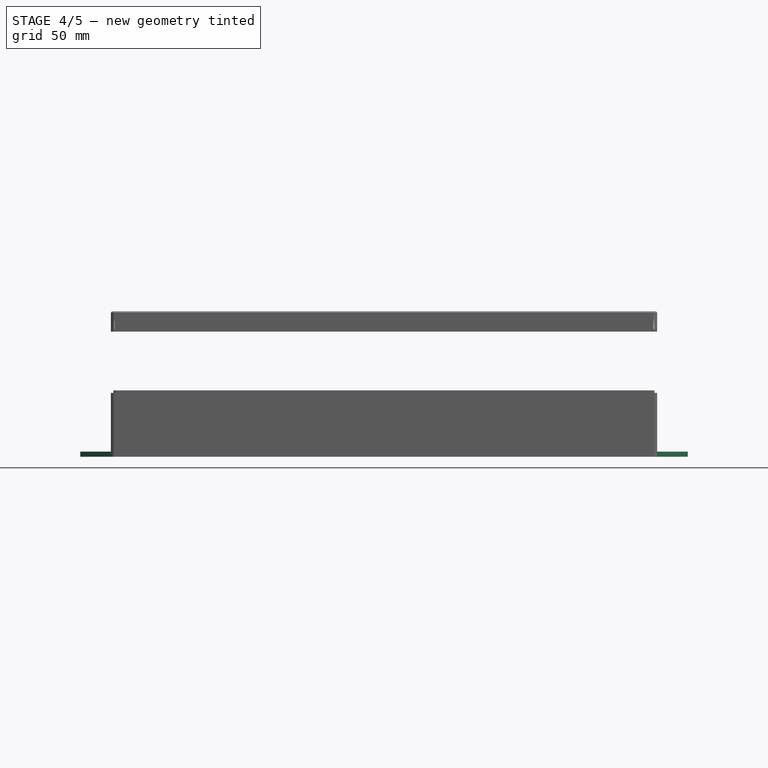
[diagram: stage 4 of 5 — front view after this stage's code; geometry added in this stage tinted green]
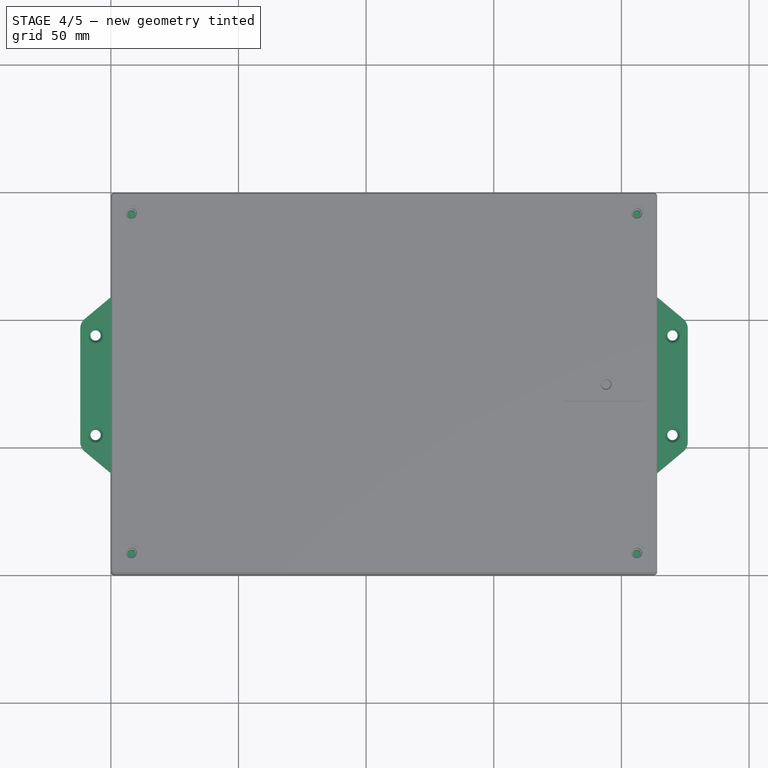
[diagram: stage 4 of 5 — top view after this stage's code; geometry added in this stage tinted green]
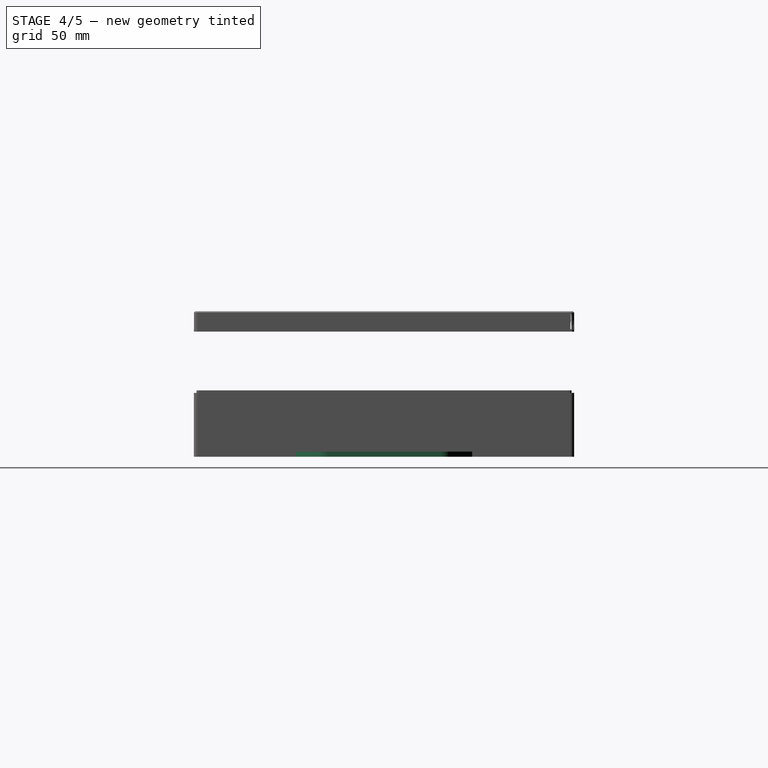
[diagram: stage 4 of 5 — right view after this stage's code; geometry added in this stage tinted green]
FEATURE [Sketcher::SketchObject] Sketch004  label="Углубление в стойке крепления корпуса под винт. Схема"
  FullyConstrained = true
  MapMode = 5
  Placement = pos=(0,0,25) rot=(0,0,1;0rad)
  Support = -> [Pad002]
  sketch-geometry (4):
    g0: Circle CenterX=8 CenterY=8 CenterZ=0 NormalX=0 NormalY=0 NormalZ=1 AngleXU=0 Radius=1.55
    g1: Circle CenterX=206 CenterY=8 CenterZ=0 NormalX=0 NormalY=0 NormalZ=1 AngleXU=0 Radius=1.55
    g2: Circle CenterX=8 CenterY=141 CenterZ=0 NormalX=0 NormalY=0 NormalZ=1 AngleXU=0 Radius=1.55
    g3: Circle CenterX=206 CenterY=141 CenterZ=0 NormalX=0 NormalY=0 NormalZ=1 AngleXU=0 Radius=1.55
  constraints (12):
    c: Radius(g0) = 1.55
    c: Equal(g0,g1)
    c: Equal(g0,g2)
    c: Equal(g0,g3)
    c: DistanceX(g0) = 8
    c: DistanceY(g0) = 8
    c: DistanceY(g1) = 8
    c: DistanceX(g1) = 206
    c: DistanceX(g2) = 8
    c: DistanceY(g2) = 141
    c: DistanceY(g3) = 141
    c: DistanceX(g3) = 206
FEATURE [PartDesign::Pocket] Pocket001  label="Углубление в стойке крепления корпуса под винт"
  BaseFeature = -> Pad002
  Length = 12
  Length2 = 100
  Profile = -> Sketch004
  Type = 0
FEATURE [PartDesign::Chamfer] Chamfer  label="Бортик для стойки крепления корпуса"
  Angle = 45
  Base = -> Pocket001 [Edge79,Edge77,Edge78,Edge80]
  BaseFeature = -> Pocket001
  ChamferType = 0
  FlipDirection = false
  Size = 2
  Size2 = 1
  SupportTransform = false
FEATURE [Sketcher::SketchObject] Sketch005  label="Ушко корпуса. Схема"
  FullyConstrained = true
  MapMode = 5
  Support = -> [XY_Plane]
  sketch-geometry (8):
    g0: LineSegment StartX=0 StartY=109 StartZ=0 EndX=-12 EndY=99 EndZ=0
    g1: LineSegment StartX=-12 StartY=99 StartZ=0 EndX=-12 EndY=50 EndZ=0
    g2: LineSegment StartX=-12 StartY=50 StartZ=0 EndX=0 EndY=40 EndZ=0
    g3: LineSegment StartX=0 StartY=40 StartZ=0 EndX=0 EndY=109 EndZ=0
    g4: LineSegment StartX=214 StartY=109 StartZ=0 EndX=214 EndY=40 EndZ=0
    g5: LineSegment StartX=214 StartY=40 StartZ=0 EndX=226 EndY=50 EndZ=0
    g6: LineSegment StartX=226 StartY=50 StartZ=0 EndX=226 EndY=99 EndZ=0
    g7: LineSegment StartX=226 StartY=99 StartZ=0 EndX=214 EndY=109 EndZ=0
  constraints (24):
    c: PointOnObject(g0,g-2)
    c: Coincident(g0,g1)
    c: Vertical(g1)
    c: Coincident(g1,g2)
    c: PointOnObject(g2,g-2)
    c: Coincident(g2,g3)
    c: Coincident(g3,g0)
    c: DistanceY(g2) = 40
    c: DistanceY(g0) = 109
    c: DistanceY(g1) = 50
    c: DistanceY(g0) = 99
    c: Vertical(g4)
    c: Coincident(g4,g5)
    c: Coincident(g5,g6)
    c: Coincident(g6,g7)
    c: Coincident(g7,g4)
    c: DistanceY(g4) = 40
    c: DistanceX(g4) = 214
    c: DistanceX(g5) = 226
    c: DistanceY(g5) = 50
    c: DistanceY(g4) = 109
    c: DistanceY(g6) = 99
    c: DistanceX(g6) = 226
    c: DistanceX(g1) = -12
FEATURE [PartDesign::Pad] Pad003  label="Ушко корпуса"
  BaseFeature = -> Chamfer
  Direction = (1,1,1)
  Length = 2
  Length2 = 100
  Profile = -> Sketch005
  Type = 0
FEATURE [PartDesign::Fillet] Fillet004  label="Скругление граней ушка корпуса"
  Base = -> Pad003 [Edge140,Edge135,Edge147,Edge142]
  BaseFeature = -> Pad003
  Radius = 5
  SupportTransform = false
FEATURE [Sketcher::SketchObject] Sketch006  label="Отверстия под крепление корпуса к основанию. Схема"
  FullyConstrained = true
  MapMode = 5
  Placement = pos=(0,0,2) rot=(0,0,1;0rad)
  Support = -> [Fillet004]
  sketch-geometry (4):
    g0: Circle CenterX=-6 CenterY=55 CenterZ=0 NormalX=0 NormalY=0 NormalZ=1 AngleXU=0 Radius=2
    g1: Circle CenterX=-6 CenterY=94 CenterZ=0 NormalX=0 NormalY=0 NormalZ=1 AngleXU=0 Radius=2
    g2: Circle CenterX=220 CenterY=94 CenterZ=0 NormalX=0 NormalY=0 NormalZ=1 AngleXU=0 Radius=2
    g3: Circle CenterX=220 CenterY=55 CenterZ=0 NormalX=0 NormalY=0 NormalZ=1 AngleXU=0 Radius=2
  constraints (12):
    c: Radius(g0) = 2
    c: Equal(g0,g1)
    c: Equal(g0,g2)
    c: Equal(g0,g3)
    c: DistanceY(g0) = 55
    c: DistanceY(g1) = 94
    c: DistanceX(g1) = -6
    c: DistanceX(g0) = -6
    c: DistanceX(g3) = 220
    c: DistanceY(g3) = 55
    c: DistanceX(g2) = 220
    c: DistanceY(g2) = 94
FEATURE [PartDesign::Pocket] Pocket002  label="Отверстия под крепление корпуса к основанию"
  BaseFeature = -> Fillet004
  Length = 2
  Length2 = 100
  Profile = -> Sketch006
  Type = 0
FEATURE [PartDesign::Chamfer] Chamfer001  label="Фаска под винт креплени корпуса к основанию"
  Angle = 45
  Base = -> Pocket002 [Edge25,Edge24,Edge93,Edge92]
  BaseFeature = -> Pocket002
  ChamferType = 0
  FlipDirection = false
  Size = 1
  Size2 = 1
  SupportTransform = false
FEATURE [Sketcher::SketchObject] Sketch007  label="Нижняя часть стойки платы. Схема"
  FullyConstrained = true
  MapMode = 5
  Placement = pos=(0,0,2) rot=(0,0,1;0rad)
  Support = -> [Chamfer001]
  sketch-geometry (4):
    g0: Circle CenterX=17.3 CenterY=19.05 CenterZ=0 NormalX=0 NormalY=0 NormalZ=1 AngleXU=0 Radius=4
    g1: Circle CenterX=163.8 CenterY=19.05 CenterZ=0 NormalX=0 NormalY=0 NormalZ=1 AngleXU=0 Radius=4
    g2: Circle CenterX=17.3 CenterY=137.45 CenterZ=0 NormalX=0 NormalY=0 NormalZ=1 AngleXU=0 Radius=4
    g3: Circle CenterX=142.7 CenterY=137.45 CenterZ=0 NormalX=0 NormalY=0 NormalZ=1 AngleXU=0 Radius=4
  constraints (12):
    c: Radius(g0) = 4
    c: Equal(g0,g1)
    c: Equal(g0,g2)
    c: Equal(g0,g3)
    c: DistanceX(g0) = 17.3
    c: DistanceY(g0) = 19.05
    c: DistanceY(g1) = 19.05
    c: DistanceX(g1) = 163.8
    c: DistanceY(g2) = 137.45
    c: DistanceX(g3) = 142.7
    c: DistanceX(g2) = 17.3
    c: DistanceY(g3) = 137.45
FEATURE [PartDesign::Pad] Pad004  label="Нижняя часть стойки платы"
  BaseFeature = -> Chamfer001
  Direction = (1,1,1)
  Length = 2
  Length2 = 100
  Profile = -> Sketch007
  Type = 0
FEATURE [Sketcher::SketchObject] Sketch008  label="Верхняя часть стойки платы. Схема"
  FullyConstrained = true
  MapMode = 5
  Placement = pos=(0,0,4) rot=(0,0,1;0rad)
  Support = -> [Pad004]
  sketch-geometry (4):
    g0: Circle CenterX=17.3 CenterY=137.45 CenterZ=0 NormalX=0 NormalY=0 NormalZ=1 AngleXU=0 Radius=2.5
    g1: Circle CenterX=17.3 CenterY=19.05 CenterZ=0 NormalX=0 NormalY=0 NormalZ=1 AngleXU=0 Radius=2.5
    g2: Circle CenterX=142.7 CenterY=137.45 CenterZ=0 NormalX=0 NormalY=0 NormalZ=1 AngleXU=0 Radius=2.5
    g3: Circle CenterX=163.8 CenterY=19.05 CenterZ=0 NormalX=0 NormalY=0 NormalZ=1 AngleXU=0 Radius=2.5
  constraints (12):
    c: Radius(g0) = 2.5
    c: Equal(g0,g1)
    c: Equal(g0,g2)
    c: Equal(g0,g3)
    c: DistanceX(g0) = 17.3
    c: DistanceY(g0) = 137.45
    c: DistanceX(g1) = 17.3
    c: DistanceY(g1) = 19.05
    c: DistanceX(g2) = 142.7
    c: DistanceY(g2) = 137.45
    c: DistanceX(g3) = 163.8
    c: DistanceY(g3) = 19.05
FEATURE [PartDesign::Pad] Pad005  label="Верхняя часть стойки платы"
  BaseFeature = -> Pad004
  Direction = (1,1,1)
  Length = 1
  Length2 = 100
  Profile = -> Sketch008
  Type = 0
FEATURE [Sketcher::SketchObject] Sketch009  label="Углубление под гайку М3 в корпусе. Схема"
  FullyConstrained = true
  MapMode = 5
  Support = -> [XY_Plane]
  sketch-geometry (28):
    g0: LineSegment StartX=20 StartY=17.4912 StartZ=0 EndX=20 EndY=20.6088 EndZ=0
    g1: LineSegment StartX=20 StartY=20.6088 StartZ=0 EndX=17.3 EndY=22.1677 EndZ=0
    g2: LineSegment StartX=17.3 StartY=22.1677 StartZ=0 EndX=14.6 EndY=20.6088 EndZ=0
    g3: LineSegment StartX=14.6 StartY=20.6088 StartZ=0 EndX=14.6 EndY=17.4912 EndZ=0
    g4: LineSegment StartX=14.6 StartY=17.4912 StartZ=0 EndX=17.3 EndY=15.9323 EndZ=0
    g5: LineSegment StartX=17.3 StartY=15.9323 StartZ=0 EndX=20 EndY=17.4912 EndZ=0
    g6: Circle CenterX=17.3 CenterY=19.05 CenterZ=0 NormalX=0 NormalY=0 NormalZ=1 AngleXU=0 Radius=3.11769
    g7: LineSegment StartX=20 StartY=135.891 StartZ=0 EndX=20 EndY=139.009 EndZ=0
    g8: LineSegment StartX=20 StartY=139.009 StartZ=0 EndX=17.3 EndY=140.568 EndZ=0
    g9: LineSegment StartX=17.3 StartY=140.568 StartZ=0 EndX=14.6 EndY=139.009 EndZ=0
    g10: LineSegment StartX=14.6 StartY=139.009 StartZ=0 EndX=14.6 EndY=135.891 EndZ=0
    g11: LineSegment StartX=14.6 StartY=135.891 StartZ=0 EndX=17.3 EndY=134.332 EndZ=0
    g12: LineSegment StartX=17.3 StartY=134.332 StartZ=0 EndX=20 EndY=135.891 EndZ=0
    g13: Circle CenterX=17.3 CenterY=137.45 CenterZ=0 NormalX=0 NormalY=0 NormalZ=1 AngleXU=0 Radius=3.11769
    g14: LineSegment StartX=166.5 StartY=17.4912 StartZ=0 EndX=166.5 EndY=20.6088 EndZ=0
    g15: LineSegment StartX=166.5 StartY=20.6088 StartZ=0 EndX=163.8 EndY=22.1677 EndZ=0
    g16: LineSegment StartX=163.8 StartY=22.1677 StartZ=0 EndX=161.1 EndY=20.6088 EndZ=0
    g17: LineSegment StartX=161.1 StartY=20.6088 StartZ=0 EndX=161.1 EndY=17.4912 EndZ=0
    g18: LineSegment StartX=161.1 StartY=17.4912 StartZ=0 EndX=163.8 EndY=15.9323 EndZ=0
    g19: LineSegment StartX=163.8 StartY=15.9323 StartZ=0 EndX=166.5 EndY=17.4912 EndZ=0
    g20: Circle CenterX=163.8 CenterY=19.05 CenterZ=0 NormalX=0 NormalY=0 NormalZ=1 AngleXU=0 Radius=3.11769
    g21: LineSegment StartX=145.4 StartY=135.891 StartZ=0 EndX=145.4 EndY=139.009 EndZ=0
    g22: LineSegment StartX=145.4 StartY=139.009 StartZ=0 EndX=142.7 EndY=140.568 EndZ=0
    g23: LineSegment StartX=142.7 StartY=140.568 StartZ=0 EndX=140 EndY=139.009 EndZ=0
    g24: LineSegment StartX=140 StartY=139.009 StartZ=0 EndX=140 EndY=135.891 EndZ=0
    g25: LineSegment StartX=140 StartY=135.891 StartZ=0 EndX=142.7 EndY=134.332 EndZ=0
    g26: LineSegment StartX=142.7 StartY=134.332 StartZ=0 EndX=145.4 EndY=135.891 EndZ=0
    g27: Circle CenterX=142.7 CenterY=137.45 CenterZ=0 NormalX=0 NormalY=0 NormalZ=1 AngleXU=0 Radius=3.11769
  constraints (68):
    c: Coincident(g0,g1)
    c: Coincident(g1,g2)
    c: Coincident(g2,g3)
    c: Coincident(g3,g4)
    c: Coincident(g4,g5)
    c: Coincident(g5,g0)
    c: Equal(g0, g1-g5) x5
    c: PointOnObject(g0,g6)
    c: PointOnObject(g1,g6)
    c: PointOnObject(g2,g6)
    c: PointOnObject(g3,g6)
    c: PointOnObject(g4,g6)
    c: PointOnObject(g5,g6)
    c: Coincident(g7,g8)
    c: Coincident(g8,g9)
    c: Coincident(g9,g10)
    c: Coincident(g10,g11)
    c: Coincident(g11,g12)
    c: Coincident(g12,g7)
    c: Equal(g7, g8-g12) x5
    c: PointOnObject(g7,g13)
    c: PointOnObject(g8,g13)
    c: PointOnObject(g9,g13)
    c: PointOnObject(g10,g13)
    c: PointOnObject(g11,g13)
    c: PointOnObject(g12,g13)
    c: Coincident(g14,g15)
    c: Coincident(g15,g16)
    c: Coincident(g16,g17)
    c: Coincident(g17,g18)
    c: Coincident(g18,g19)
    c: Coincident(g19,g14)
    c: Equal(g14, g15-g19) x5
    c: PointOnObject(g14,g20)
    c: PointOnObject(g15,g20)
    c: PointOnObject(g16,g20)
    c: PointOnObject(g17,g20)
    c: PointOnObject(g18,g20)
    c: PointOnObject(g19,g20)
    c: Distance(g2,g0) = 5.4
    c: Distance(g9,g7) = 5.4
    c: Distance(g16,g14) = 5.4
    c: Parallel(g3,g-2)
    c: Parallel(g10,g-2)
    c: Parallel(g17,g-2)
    c: DistanceX(g6) = 17.3
    c: DistanceY(g6) = 19.05
    c: DistanceX(g13) = 17.3
    c: DistanceY(g13) = 137.45
    c: DistanceY(g20) = 19.05
    c: Coincident(g21,g22)
    c: Coincident(g22,g23)
    c: Coincident(g23,g24)
    c: Coincident(g24,g25)
    c: Coincident(g25,g26)
    c: Coincident(g26,g21)
    c: Equal(g21, g22-g26) x5
    c: PointOnObject(g21,g27)
    c: PointOnObject(g22,g27)
    c: PointOnObject(g23,g27)
    c: PointOnObject(g24,g27)
    c: PointOnObject(g25,g27)
    c: PointOnObject(g26,g27)
    c: Distance(g23,g21) = 5.4
    c: DistanceX(g27) = 142.7
    c: Parallel(g24,g-2)
    c: DistanceY(g27) = 137.45
    c: DistanceX(g20) = 163.8
FEATURE [PartDesign::Pocket] Pocket003  label="Углубление под гайку М3 в корпусе"
  BaseFeature = -> Pad005
  Length = 2.5
  Length2 = 100
  Profile = -> Sketch009
  Reversed = true
  Type = 0
FEATURE [Sketcher::SketchObject] Sketch010  label="Отверстие в стойке платы. Схема"
  FullyConstrained = true
  MapMode = 5
  Placement = pos=(0,0,5) rot=(0,0,1;0rad)
  Support = -> [Pocket003]
  sketch-geometry (4):
    g0: Circle CenterX=17.3 CenterY=137.45 CenterZ=0 NormalX=0 NormalY=0 NormalZ=1 AngleXU=0 Radius=1.55
    g1: Circle CenterX=142.7 CenterY=137.45 CenterZ=0 NormalX=0 NormalY=0 NormalZ=1 AngleXU=0 Radius=1.55
    g2: Circle CenterX=17.3 CenterY=19.05 CenterZ=0 NormalX=0 NormalY=0 NormalZ=1 AngleXU=0 Radius=1.55
    g3: Circle CenterX=163.8 CenterY=19.03 CenterZ=0 NormalX=0 NormalY=0 NormalZ=1 AngleXU=0 Radius=1.55
  constraints (12):
    c: DistanceX(g0) = 17.3
    c: DistanceY(g0) = 137.45
    c: DistanceX(g1) = 142.7
    c: DistanceX(g2) = 17.3
    c: DistanceY(g2) = 19.05
    c: DistanceX(g3) = 163.8
    c: DistanceY(g3) = 19.03
    c: DistanceY(g1) = 137.45
    c: Radius(g3) = 1.55
    c: Equal(g3,g1)
    c: Equal(g3,g0)
    c: Equal(g3,g2)
FEATURE [PartDesign::Pocket] Pocket004  label="Отверстие в стойке платы"
  BaseFeature = -> Pocket003
  Length = 5
  Length2 = 100
  Profile = -> Sketch010
  Type = 0
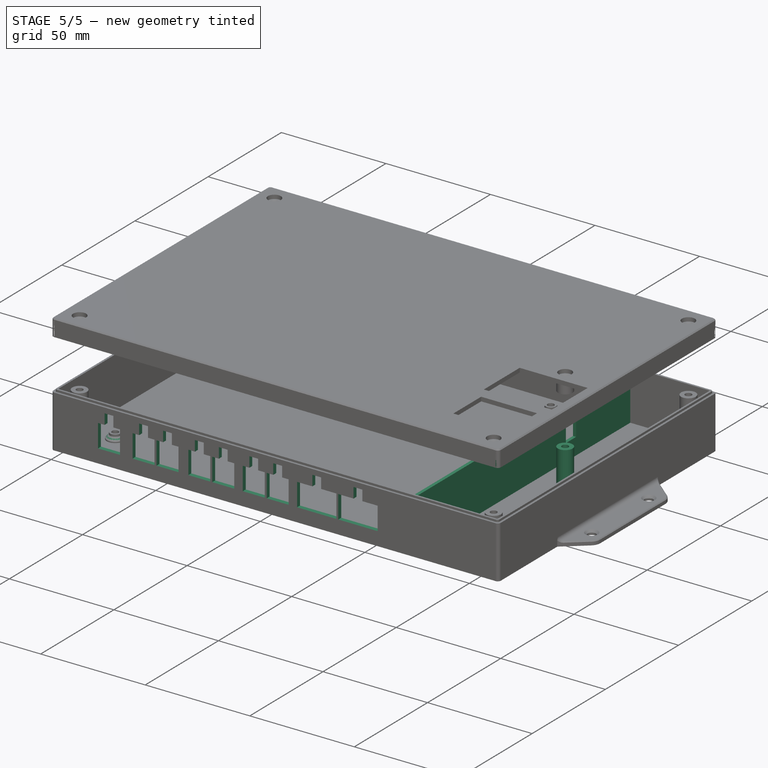
[diagram: stage 5 of 5 — iso view after this stage's code; geometry added in this stage tinted green]
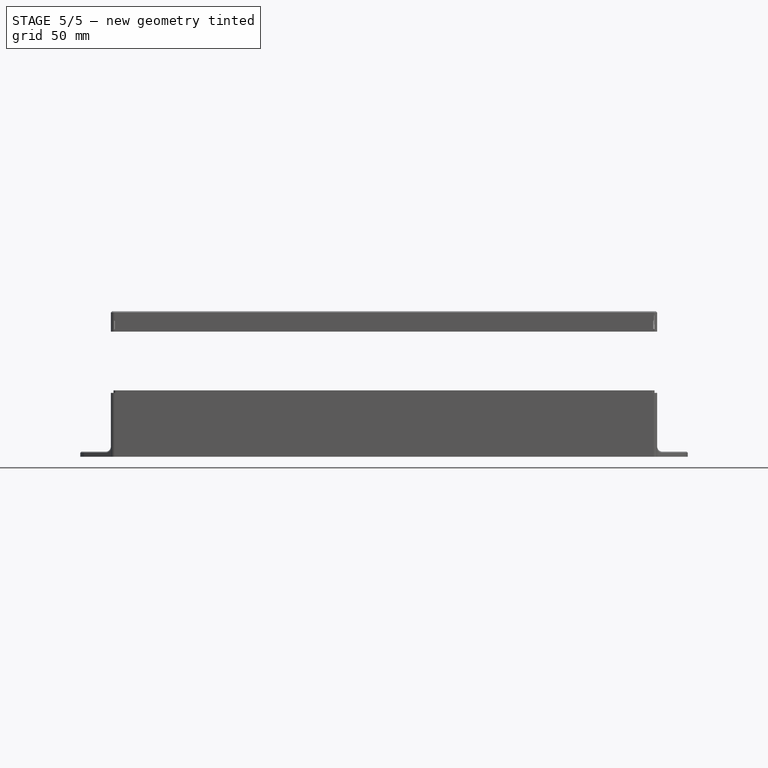
[diagram: stage 5 of 5 — front view after this stage's code; geometry added in this stage tinted green]
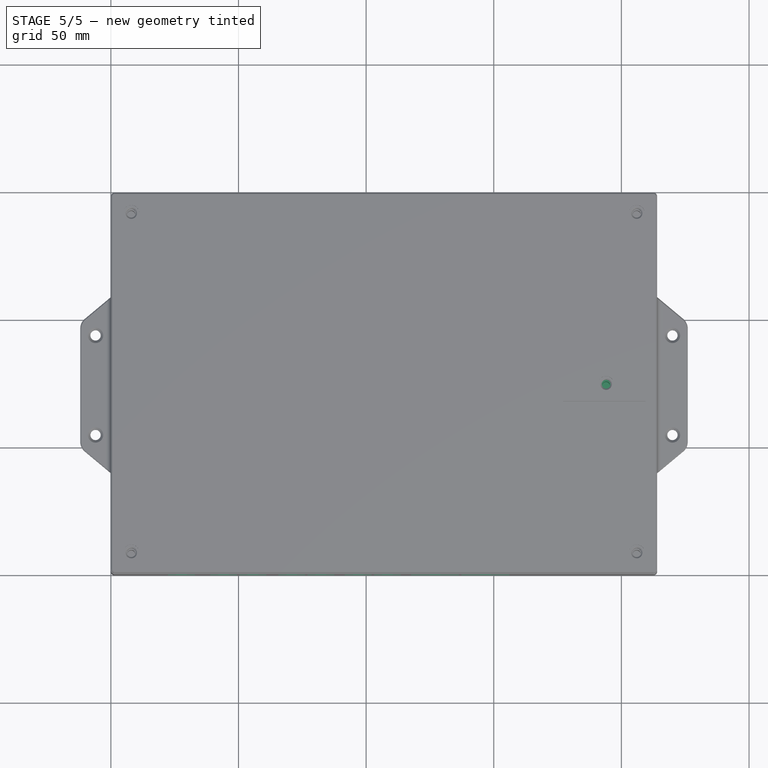
[diagram: stage 5 of 5 — top view after this stage's code; geometry added in this stage tinted green]
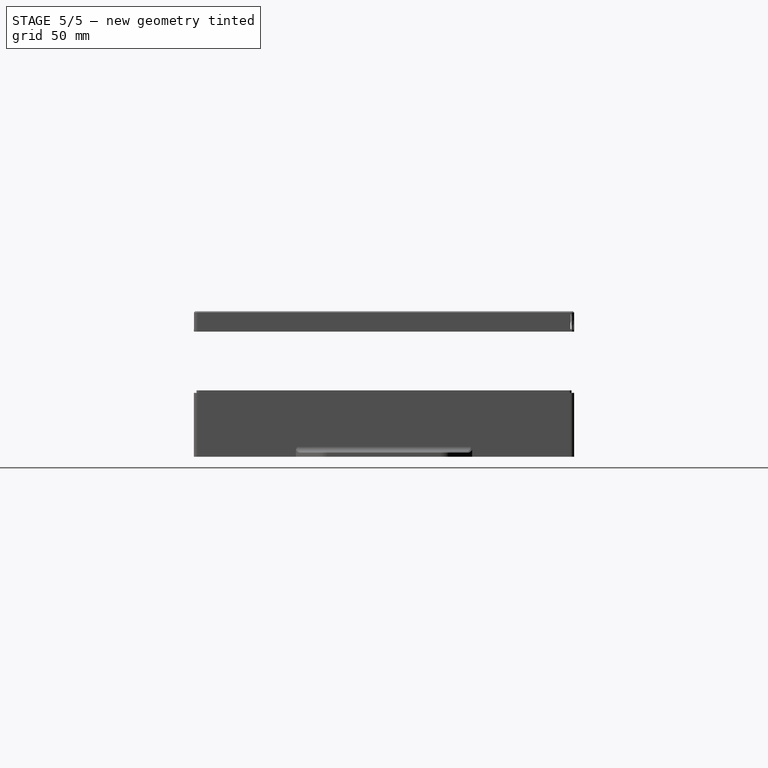
[diagram: stage 5 of 5 — right view after this stage's code; geometry added in this stage tinted green]
FEATURE [PartDesign::Chamfer] Chamfer002  label="Красота для стойки платы"
  Angle = 45
  Base = -> Pocket004 [Edge257,Edge258,Edge256,Edge255]
  BaseFeature = -> Pocket004
  ChamferType = 0
  FlipDirection = false
  Size = 1.45
  Size2 = 1
  SupportTransform = false
FEATURE [Sketcher::SketchObject] Sketch011  label="Отверстия под разъемы. Схема"
  FullyConstrained = true
  MapMode = 5
  Placement = pos=(0,0,0) rot=(1,0,0;1.5708rad)
  Support = -> [XZ_Plane]
  sketch-geometry (73):
    g0: LineSegment StartX=25.55 StartY=22.5 StartZ=0 EndX=29.75 EndY=22.5 EndZ=0
    g1: LineSegment StartX=29.75 StartY=22.5 StartZ=0 EndX=29.75 EndY=17.5 EndZ=0
    g2: LineSegment StartX=29.75 StartY=17.5 StartZ=0 EndX=32.9 EndY=17.5 EndZ=0
    g3: LineSegment StartX=32.9 StartY=17.5 StartZ=0 EndX=32.9 EndY=6.5 EndZ=0
    g4: LineSegment StartX=32.9 StartY=6.5 StartZ=0 EndX=22.4 EndY=6.5 EndZ=0
    g5: LineSegment StartX=22.4 StartY=6.5 StartZ=0 EndX=22.4 EndY=17.5 EndZ=0
    g6: LineSegment StartX=22.4 StartY=17.5 StartZ=0 EndX=25.55 EndY=17.5 EndZ=0
    g7: LineSegment StartX=25.55 StartY=17.5 StartZ=0 EndX=25.55 EndY=22.5 EndZ=0
    g8: LineSegment StartX=38.93 StartY=17.5 StartZ=0 EndX=42.08 EndY=17.5 EndZ=0
    g9: LineSegment StartX=42.08 StartY=17.5 StartZ=0 EndX=42.08 EndY=22.5 EndZ=0
    g10: LineSegment StartX=42.08 StartY=22.5 StartZ=0 EndX=46.28 EndY=22.5 EndZ=0
    g11: LineSegment StartX=46.28 StartY=22.5 StartZ=0 EndX=46.28 EndY=17.5 EndZ=0
    g12: LineSegment StartX=46.28 StartY=17.5 StartZ=0 EndX=49.43 EndY=17.5 EndZ=0
    g13: LineSegment StartX=49.43 StartY=17.5 StartZ=0 EndX=49.43 EndY=6.5 EndZ=0
    g14: LineSegment StartX=49.43 StartY=6.5 StartZ=0 EndX=38.93 EndY=6.5 EndZ=0
    g15: LineSegment StartX=38.93 StartY=6.5 StartZ=0 EndX=38.93 EndY=17.5 EndZ=0
    g16: LineSegment StartX=50.38 StartY=6.5 StartZ=0 EndX=50.38 EndY=17.5 EndZ=0
    g17: LineSegment StartX=50.38 StartY=17.5 StartZ=0 EndX=53.53 EndY=17.5 EndZ=0
    g18: LineSegment StartX=53.53 StartY=17.5 StartZ=0 EndX=53.53 EndY=22.5 EndZ=0
    g19: LineSegment StartX=53.53 StartY=22.5 StartZ=0 EndX=57.73 EndY=22.5 EndZ=0
    g20: LineSegment StartX=57.73 StartY=22.5 StartZ=0 EndX=57.73 EndY=17.5 EndZ=0
    g21: LineSegment StartX=57.73 StartY=17.5 StartZ=0 EndX=60.88 EndY=17.5 EndZ=0
    g22: LineSegment StartX=60.88 StartY=17.5 StartZ=0 EndX=60.88 EndY=6.5 EndZ=0
    g23: LineSegment StartX=60.88 StartY=6.5 StartZ=0 EndX=50.38 EndY=6.5 EndZ=0
    g24: LineSegment StartX=65.6 StartY=6.5 StartZ=0 EndX=65.6 EndY=17.5 EndZ=0
    g25: LineSegment StartX=65.6 StartY=17.5 StartZ=0 EndX=68.75 EndY=17.5 EndZ=0
    g26: LineSegment StartX=68.75 StartY=17.5 StartZ=0 EndX=68.75 EndY=22.5 EndZ=0
    g27: LineSegment StartX=68.75 StartY=22.5 StartZ=0 EndX=72.95 EndY=22.5 EndZ=0
    g28: LineSegment StartX=72.95 StartY=22.5 StartZ=0 EndX=72.95 EndY=17.5 EndZ=0
    g29: LineSegment StartX=72.95 StartY=17.5 StartZ=0 EndX=76.1 EndY=17.5 EndZ=0
    g30: LineSegment StartX=76.1 StartY=17.5 StartZ=0 EndX=76.1 EndY=6.5 EndZ=0
    g31: LineSegment StartX=76.1 StartY=6.5 StartZ=0 EndX=65.6 EndY=6.5 EndZ=0
    g32: LineSegment StartX=77.03 StartY=6.5 StartZ=0 EndX=77.03 EndY=17.5 EndZ=0
    g33: LineSegment StartX=77.03 StartY=17.5 StartZ=0 EndX=80.18 EndY=17.5 EndZ=0
    g34: LineSegment StartX=80.18 StartY=17.5 StartZ=0 EndX=80.18 EndY=22.5 EndZ=0
    g35: LineSegment StartX=80.18 StartY=22.5 StartZ=0 EndX=84.38 EndY=22.5 EndZ=0
    g36: LineSegment StartX=84.38 StartY=22.5 StartZ=0 EndX=84.38 EndY=17.5 EndZ=0
    g37: LineSegment StartX=84.38 StartY=17.5 StartZ=0 EndX=87.53 EndY=17.5 EndZ=0
    g38: LineSegment StartX=87.53 StartY=17.5 StartZ=0 EndX=87.53 EndY=6.5 EndZ=0
    g39: LineSegment StartX=87.53 StartY=6.5 StartZ=0 EndX=77.03 EndY=6.5 EndZ=0
    g40: LineSegment StartX=91.64 StartY=6.5 StartZ=0 EndX=91.64 EndY=17.5 EndZ=0
    g41: LineSegment StartX=91.64 StartY=17.5 StartZ=0 EndX=94.79 EndY=17.5 EndZ=0
    g42: LineSegment StartX=94.79 StartY=17.5 StartZ=0 EndX=94.79 EndY=22.5 EndZ=0
    g43: LineSegment StartX=94.79 StartY=22.5 StartZ=0 EndX=98.99 EndY=22.5 EndZ=0
    g44: LineSegment StartX=98.99 StartY=22.5 StartZ=0 EndX=98.99 EndY=17.5 EndZ=0
    g45: LineSegment StartX=98.99 StartY=17.5 StartZ=0 EndX=102.14 EndY=17.5 EndZ=0
    g46: LineSegment StartX=102.14 StartY=17.5 StartZ=0 EndX=102.14 EndY=6.5 EndZ=0
    g47: LineSegment StartX=102.14 StartY=6.5 StartZ=0 EndX=91.64 EndY=6.5 EndZ=0
    g48: LineSegment StartX=103.08 StartY=6.5 StartZ=0 EndX=103.08 EndY=17.5 EndZ=0
    g49: LineSegment StartX=103.08 StartY=17.5 StartZ=0 EndX=106.23 EndY=17.5 EndZ=0
    g50: LineSegment StartX=106.23 StartY=17.5 StartZ=0 EndX=106.23 EndY=22.5 EndZ=0
    g51: LineSegment StartX=106.23 StartY=22.5 StartZ=0 EndX=110.43 EndY=22.5 EndZ=0
    g52: LineSegment StartX=110.43 StartY=22.5 StartZ=0 EndX=110.43 EndY=17.5 EndZ=0
    g53: LineSegment StartX=110.43 StartY=17.5 StartZ=0 EndX=113.58 EndY=17.5 EndZ=0
    g54: LineSegment StartX=113.58 StartY=17.5 StartZ=0 EndX=113.58 EndY=6.5 EndZ=0
    g55: LineSegment StartX=113.58 StartY=6.5 StartZ=0 EndX=103.08 EndY=6.5 EndZ=0
    g56: LineSegment StartX=117.6 StartY=6.5 StartZ=0 EndX=117.6 EndY=17.5 EndZ=0
    g57: LineSegment StartX=117.6 StartY=17.5 StartZ=0 EndX=124.9 EndY=17.5 EndZ=0
    g58: LineSegment StartX=124.9 StartY=17.5 StartZ=0 EndX=124.9 EndY=22.5 EndZ=0
    g59: LineSegment StartX=124.9 StartY=22.5 StartZ=0 EndX=129.1 EndY=22.5 EndZ=0
    g60: LineSegment StartX=129.1 StartY=22.5 StartZ=0 EndX=129.1 EndY=17.5 EndZ=0
    g61: LineSegment StartX=129.1 StartY=17.5 StartZ=0 EndX=136.4 EndY=17.5 EndZ=0
    g62: LineSegment StartX=136.4 StartY=17.5 StartZ=0 EndX=136.4 EndY=6.5 EndZ=0
    g63: LineSegment StartX=136.4 StartY=6.5 StartZ=0 EndX=117.6 EndY=6.5 EndZ=0
    g64: LineSegment StartX=137.3 StartY=6.5 StartZ=0 EndX=137.3 EndY=17.5 EndZ=0
    g65: LineSegment StartX=137.3 StartY=17.5 StartZ=0 EndX=144.6 EndY=17.5 EndZ=0
    g66: LineSegment StartX=144.6 StartY=17.5 StartZ=0 EndX=144.6 EndY=22.5 EndZ=0
    g67: LineSegment StartX=144.6 StartY=22.5 StartZ=0 EndX=148.8 EndY=22.5 EndZ=0
    g68: LineSegment StartX=148.8 StartY=22.5 StartZ=0 EndX=148.8 EndY=17.5 EndZ=0
    g69: LineSegment StartX=148.8 StartY=17.5 StartZ=0 EndX=156.1 EndY=17.5 EndZ=0
    g70: LineSegment StartX=156.1 StartY=17.5 StartZ=0 EndX=156.1 EndY=6.5 EndZ=0
    g71: LineSegment StartX=156.1 StartY=6.5 StartZ=0 EndX=137.3 EndY=6.5 EndZ=0
    g72: LineSegment StartX=17.3 StartY=6.5 StartZ=0 EndX=17.3 EndY=17.5 EndZ=0
  constraints (220):
    c: Horizontal(g0)
    c: Coincident(g0,g1)
    c: Vertical(g1)
    c: Coincident(g1,g2)
    c: Horizontal(g2)
    c: Coincident(g2,g3)
    c: Vertical(g3)
    c: Coincident(g3,g4)
    c: Horizontal(g4)
    c: Coincident(g4,g5)
    c: Coincident(g5,g6)
    c: Horizontal(g6)
    c: Coincident(g6,g7)
    c: Coincident(g7,g0)
    c: Vertical(g7)
    c: Horizontal(g8)
    c: Coincident(g8,g9)
    c: Vertical(g9)
    c: Coincident(g9,g10)
    c: Coincident(g10,g11)
    c: Vertical(g11)
    c: Coincident(g11,g12)
    c: Coincident(g12,g13)
    c: Vertical(g13)
    c: Coincident(g13,g14)
    c: Horizontal(g14)
    c: Coincident(g14,g15)
    c: Coincident(g15,g8)
    c: Vertical(g15)
    c: Horizontal(g10)
    c: Horizontal(g12)
    c: Vertical(g16)
    c: Coincident(g16,g17)
    c: Horizontal(g17)
    c: Coincident(g17,g18)
    c: Vertical(g18)
    c: Coincident(g18,g19)
    c: Horizontal(g19)
    c: Coincident(g19,g20)
    c: Vertical(g20)
    c: Coincident(g20,g21)
    c: Horizontal(g21)
    c: Coincident(g21,g22)
    c: Vertical(g22)
    c: Coincident(g22,g23)
    c: Coincident(g23,g16)
    c: Horizontal(g23)
    c: Vertical(g24)
    c: Coincident(g24,g25)
    c: Horizontal(g25)
    c: Coincident(g25,g26)
    c: Vertical(g26)
    c: Coincident(g26,g27)
    c: Horizontal(g27)
    c: Coincident(g27,g28)
    c: Vertical(g28)
    c: Coincident(g28,g29)
    c: Horizontal(g29)
    c: Coincident(g29,g30)
    c: Vertical(g30)
    c: Coincident(g30,g31)
    c: Coincident(g31,g24)
    c: Horizontal(g31)
    c: Vertical(g32)
    c: Coincident(g32,g33)
    c: Horizontal(g33)
    c: Coincident(g33,g34)
    c: Vertical(g34)
    c: Coincident(g34,g35)
    c: Horizontal(g35)
    c: Coincident(g35,g36)
    c: Vertical(g36)
    c: Coincident(g36,g37)
    c: Coincident(g37,g38)
    c: Vertical(g38)
    c: Coincident(g38,g39)
    c: Coincident(g39,g32)
    c: Horizontal(g39)
    c: Vertical(g40)
    c: Coincident(g40,g41)
    c: Coincident(g41,g42)
    c: Coincident(g42,g43)
    c: Horizontal(g43)
    c: Coincident(g43,g44)
    c: Vertical(g44)
    c: Coincident(g44,g45)
    c: Coincident(g45,g46)
    c: Vertical(g46)
    c: Coincident(g46,g47)
    c: Coincident(g47,g40)
    c: Vertical(g48)
    c: Coincident(g48,g49)
    c: Horizontal(g49)
    c: Coincident(g49,g50)
    c: Vertical(g50)
    c: Coincident(g50,g51)
    c: Coincident(g51,g52)
    c: Vertical(g52)
    c: Coincident(g52,g53)
    c: Coincident(g53,g54)
    c: Vertical(g54)
    c: Coincident(g54,g55)
    c: Coincident(g55,g48)
    c: Horizontal(g55)
    c: Vertical(g56)
    c: Coincident(g56,g57)
    c: Coincident(g57,g58)
    c: Vertical(g58)
    c: Coincident(g58,g59)
    c: Horizontal(g59)
    c: Coincident(g59,g60)
    c: Vertical(g60)
    c: Coincident(g60,g61)
    c: Coincident(g61,g62)
    c: Vertical(g62)
    c: Coincident(g62,g63)
    c: Coincident(g63,g56)
    c: Vertical(g64)
    c: Coincident(g64,g65)
    c: Coincident(g65,g66)
    c: Vertical(g66)
    c: Coincident(g66,g67)
    c: Coincident(g67,g68)
    c: Vertical(g68)
    c: Coincident(g68,g69)
    c: Horizontal(g69)
    c: Coincident(g69,g70)
    c: Vertical(g70)
    c: Coincident(g70,g71)
    c: Coincident(g71,g64)
    c: Equal(g5,g3)
    c: Equal(g3,g15)
    c: Equal(g15,g13)
    c: Equal(g13,g16)
    c: Equal(g16,g22)
    c: Equal(g22,g24)
    c: Equal(g24,g30)
    c: Equal(g30,g32)
    c: Equal(g32,g38)
    c: Equal(g38,g40)
    c: Equal(g40,g46)
    c: Equal(g46,g48)
    c: Equal(g48,g54)
    c: Equal(g54,g56)
    c: Equal(g56,g62)
    c: Equal(g62,g64)
    c: Equal(g64,g70)
    c: Equal(g4,g14)
    c: Equal(g14,g23)
    c: Equal(g23,g31)
    c: Equal(g31,g39)
    c: Equal(g39,g47)
    c: Equal(g47,g55)
    c: Parallel(g39,g37)
    c: Parallel(g37,g41)
    c: Parallel(g41,g47)
    c: Parallel(g47,g45)
    c: Parallel(g49,g53)
    c: Parallel(g55,g57)
    c: Parallel(g57,g61)
    c: Parallel(g61,g63)
    c: Parallel(g63,g65)
    c: Parallel(g69,g71)
    c: Equal(g6,g2)
    c: Equal(g2,g8)
    c: Equal(g8,g12)
    c: Equal(g12,g17)
    c: Equal(g17,g21)
    c: Equal(g21,g25)
    c: Equal(g25,g29)
    c: Equal(g29,g33)
    c: Equal(g33,g37)
    c: Equal(g37,g41)
    c: Equal(g41,g45)
    c: Equal(g45,g49)
    c: Equal(g49,g53)
    c: Equal(g57,g61)
    c: Equal(g61,g65)
    c: Equal(g65,g69)
    c: Equal(g1,g9)
    c: Equal(g11,g18)
    c: Equal(g20,g26)
    c: Equal(g28,g34)
    c: Equal(g36,g42)
    c: Equal(g42,g44)
    c: Equal(g44,g50)
    c: Equal(g50,g52)
    c: Equal(g52,g58)
    c: Equal(g60,g66)
    c: Equal(g66,g68)
    c: Distance(g5) = 11
    c: Distance(g0) = 4.2
    c: Distance(g4) = 10.5
    c: Parallel(g-2,g5)
    c: Distance(g7) = 5
    c: Vertical(g72)
    c: DistanceX(g72) = 17.3
    c: DistanceY(g72) = 6.5
    c: DistanceY(g4) = 6.5
    c: DistanceX(g72,g4) = 5.1
    c: DistanceY(g14) = 6.5
    c: DistanceX(g72,g14) = 21.63
    c: DistanceY(g16) = 6.5
    c: DistanceX(g72,g16) = 33.08
    c: DistanceY(g24) = 6.5
    c: DistanceX(g72,g24) = 48.3
    c: DistanceY(g32) = 6.5
    c: DistanceY(g40) = 6.5
    c: DistanceY(g48) = 6.5
    c: DistanceY(g56) = 6.5
    c: DistanceY(g64) = 6.5
    c: DistanceX(g72,g32) = 59.73
    c: DistanceX(g72,g40) = 74.34
    c: DistanceX(g72,g48) = 85.78
    c: Distance(g63) = 18.8
    c: Equal(g63,g71)
    c: DistanceX(g72,g56) = 100.3
    c: Equal(g51,g59)
    c: DistanceX(g72,g64) = 120
    c: Distance(g72,g72) = 11
FEATURE [PartDesign::Pocket] Pocket005  label="Отверстия под разъемы"
  BaseFeature = -> Chamfer002
  Length = 2
  Length2 = 100
  Profile = -> Sketch011
  Type = 0
FEATURE [Sketcher::SketchObject] Sketch012  label="Вырез разъема питания. Схема"
  FullyConstrained = false
  MapMode = 5
  Placement = pos=(0,149,0) rot=(0,0.707107,0.707107;3.14159rad)
  Support = -> [Pocket005]
  sketch-geometry (5):
    g0: LineSegment StartX=-170 StartY=17.6 StartZ=0 EndX=-160.7 EndY=17.6 EndZ=0
    g1: LineSegment StartX=-160.7 StartY=17.6 StartZ=0 EndX=-160.7 EndY=6.5 EndZ=0
    g2: LineSegment StartX=-160.7 StartY=6.5 StartZ=0 EndX=-170 EndY=6.5 EndZ=0
    g3: LineSegment StartX=-170 StartY=6.5 StartZ=0 EndX=-170 EndY=17.6 EndZ=0
    g4: LineSegment StartX=-17.3 StartY=6.5 StartZ=0 EndX=-17.3 EndY=10.6268 EndZ=0
  constraints (15):
    c: Coincident(g0,g1)
    c: Coincident(g1,g2)
    c: Coincident(g2,g3)
    c: Coincident(g3,g0)
    c: Horizontal(g0)
    c: Horizontal(g2)
    c: Vertical(g1)
    c: Distance(g0) = 9.3
    c: Distance(g1) = 11.1
    c: Vertical(g4)
    c: DistanceY(g4) = 6.5
    c: DistanceY(g2) = 6.5
    c: Equal(g0,g2)
    c: DistanceX(g4) = -17.3
    c: DistanceX(g1,g4) = 143.4
FEATURE [PartDesign::Pocket] Pocket006  label="Вырез разъема питания"
  BaseFeature = -> Pocket005
  Length = 2
  Length2 = 100
  Profile = -> Sketch012
  Type = 0
FEATURE [PartDesign::Fillet] Fillet009  label="Ребро жесткости для ушка"
  Base = -> Pocket006 [Edge429,Edge432]
  BaseFeature = -> Pocket006
  Radius = 2
  SupportTransform = false
FEATURE [PartDesign::Chamfer] Chamfer005  label="Скругление фаски ушка"
  Angle = 45
  Base = -> Fillet009 [Edge72,Edge399]
  BaseFeature = -> Fillet009
  ChamferType = 0
  FlipDirection = false
  Size = 0.4
  Size2 = 1
  SupportTransform = false
FEATURE [Sketcher::SketchObject] Sketch019  label="Перегородка. Схема"
  FullyConstrained = true
  MapMode = 5
  Placement = pos=(0,0,2) rot=(0,0,1;0rad)
  Support = -> [Chamfer005]
  sketch-geometry (4):
    g0: LineSegment StartX=174 StartY=147 StartZ=0 EndX=172.5 EndY=147 EndZ=0
    g1: LineSegment StartX=172.5 StartY=147 StartZ=0 EndX=172.5 EndY=2 EndZ=0
    g2: LineSegment StartX=172.5 StartY=2 StartZ=0 EndX=174 EndY=2 EndZ=0
    g3: LineSegment StartX=174 StartY=2 StartZ=0 EndX=174 EndY=147 EndZ=0
  constraints (12):
    c: Coincident(g0,g1)
    c: Coincident(g1,g2)
    c: Coincident(g2,g3)
    c: Coincident(g3,g0)
    c: Horizontal(g0)
    c: Horizontal(g2)
    c: Vertical(g1)
    c: Vertical(g3)
    c: DistanceY(g0) = 147
    c: DistanceX(g0) = 172.5
    c: DistanceX(g0) = 174
    c: DistanceY(g1) = 2
FEATURE [PartDesign::Pad] Pad009  label="Перегородка"
  BaseFeature = -> Chamfer005
  Direction = (1,1,1)
  Length = 24
  Length2 = 100
  Profile = -> Sketch019
  Type = 0
FEATURE [Sketcher::SketchObject] Sketch020  label="Вырез в перегородке. Схема"
  FullyConstrained = true
  MapMode = 5
  Placement = pos=(172.5,0,0) rot=(0.57735,-0.57735,-0.57735;2.0944rad)
  Support = -> [Pad009]
  sketch-geometry (4):
    g0: LineSegment StartX=-103 StartY=17 StartZ=0 EndX=-110 EndY=17 EndZ=0
    g1: LineSegment StartX=-110 StartY=17 StartZ=0 EndX=-110 EndY=10 EndZ=0
    g2: LineSegment StartX=-110 StartY=10 StartZ=0 EndX=-103 EndY=10 EndZ=0
    g3: LineSegment StartX=-103 StartY=10 StartZ=0 EndX=-103 EndY=17 EndZ=0
  constraints (12):
    c: Coincident(g0,g1)
    c: Coincident(g1,g2)
    c: Coincident(g2,g3)
    c: Coincident(g3,g0)
    c: Horizontal(g0)
    c: Horizontal(g2)
    c: Vertical(g1)
    c: Vertical(g3)
    c: Distance(g0,g0) = 7
    c: Distance(g0,g1) = 7
    c: DistanceY(g1) = 10
    c: DistanceX(g1) = -110
FEATURE [PartDesign::Pocket] Pocket010  label="Вырез в перегородке"
  BaseFeature = -> Pad009
  Length = 2
  Length2 = 100
  Profile = -> Sketch020
  Type = 0
FEATURE [Sketcher::SketchObject] Sketch022  label="Дополнительная стойка. Схема"
  FullyConstrained = true
  MapMode = 5
  Placement = pos=(0,0,2) rot=(0,0,1;0rad)
  Support = -> [Pocket010]
  sketch-geometry (1):
    g0: Circle CenterX=194 CenterY=74 CenterZ=0 NormalX=0 NormalY=0 NormalZ=1 AngleXU=0 Radius=3.5
  constraints (3):
    c: Radius(g0) = 3.5
    c: DistanceY(g0) = 74
    c: DistanceX(g0) = 194
FEATURE [PartDesign::Pad] Pad010  label="Дополнительная стойка"
  BaseFeature = -> Pocket010
  Direction = (1,1,1)
  Length = 23
  Length2 = 100
  Profile = -> Sketch022
  Type = 0
FEATURE [Sketcher::SketchObject] Sketch023  label="Углубление №5 под винт в стойке корпуса. Схема"
  FullyConstrained = true
  MapMode = 5
  Placement = pos=(0,0,25) rot=(0,0,1;0rad)
  Support = -> [Pad010]
  sketch-geometry (1):
    g0: Circle CenterX=194 CenterY=74 CenterZ=0 NormalX=0 NormalY=0 NormalZ=1 AngleXU=0 Radius=1.55
  constraints (3):
    c: Radius(g0) = 1.55
    c: DistanceY(g0) = 74
    c: DistanceX(g0) = 194
FEATURE [PartDesign::Pocket] Pocket012  label="Углубление №5 под винт в стойке корпуса"
  BaseFeature = -> Pad010
  Length = 12
  Length2 = 100
  Profile = -> Sketch023
  Type = 0
FEATURE [PartDesign::Chamfer] Chamfer007  label="Красота для 5-ой стойки"
  Angle = 45
  Base = -> Pocket012 [Edge565]
  BaseFeature = -> Pocket012
  ChamferType = 0
  FlipDirection = false
  Size = 2
  Size2 = 1
  SupportTransform = false
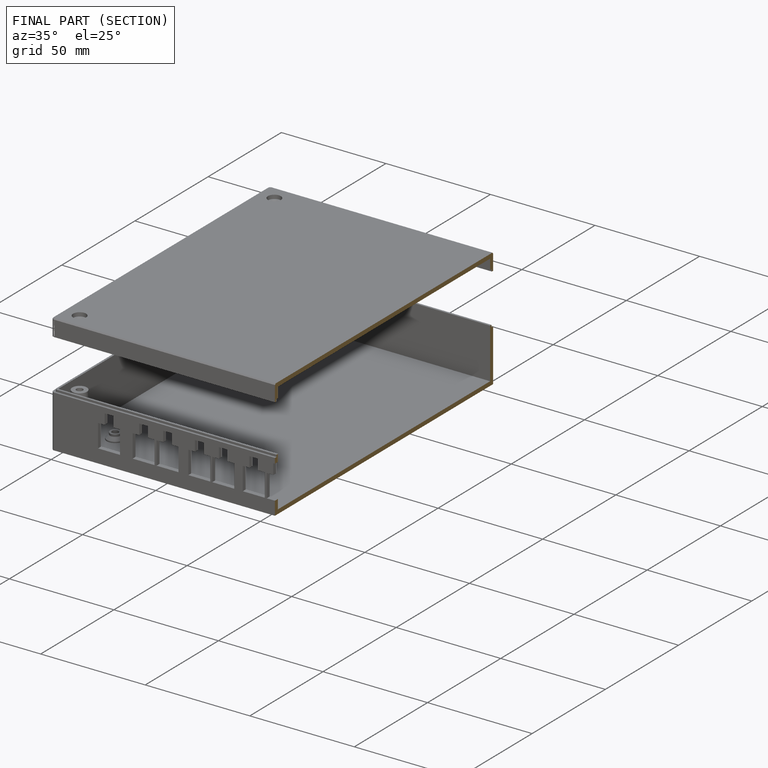
[diagram: finished part — half-section view (interior)]
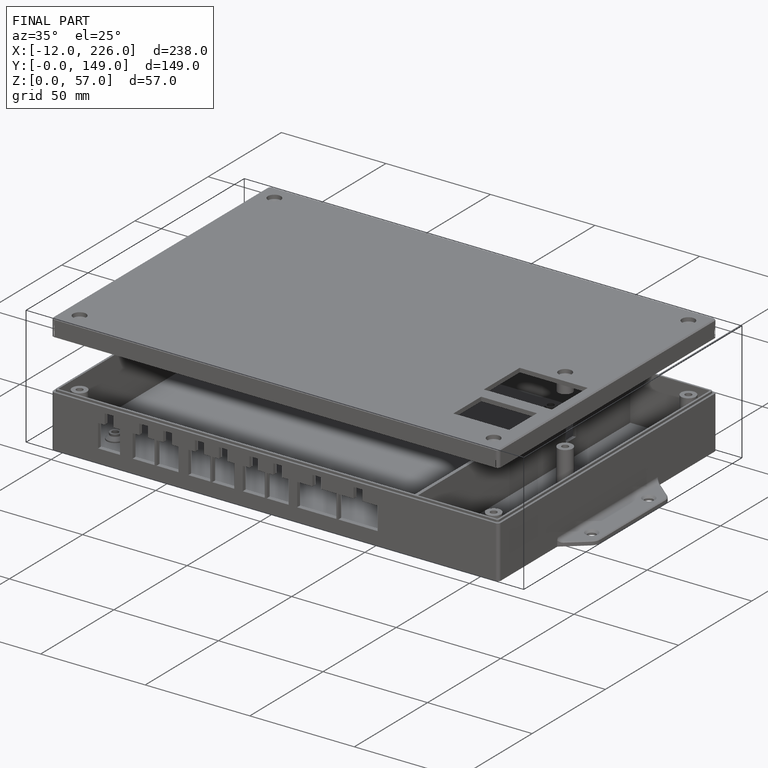
[diagram: finished part — iso view with bounding-box wireframe]
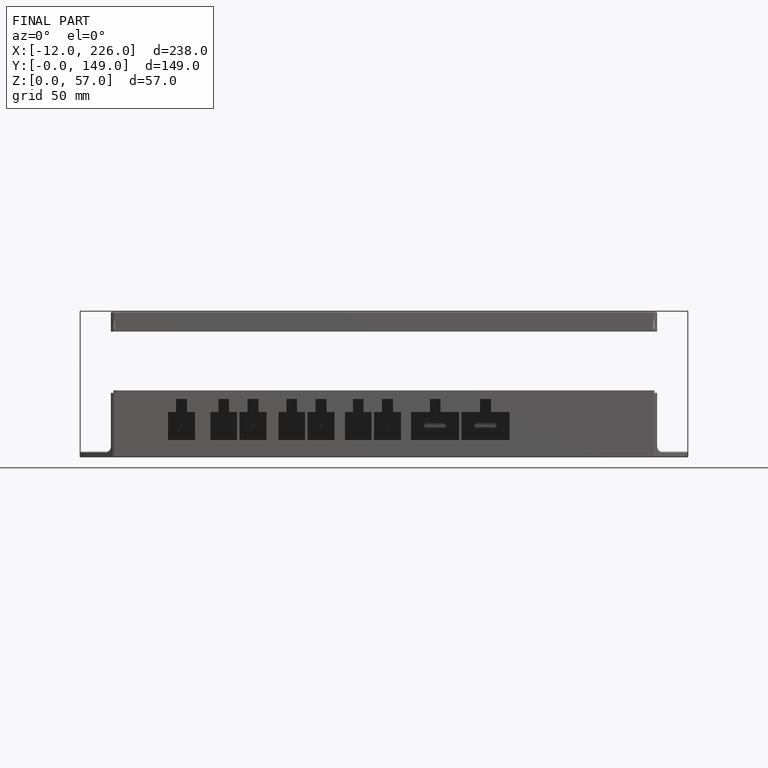
[diagram: finished part — front view with bounding-box wireframe]
